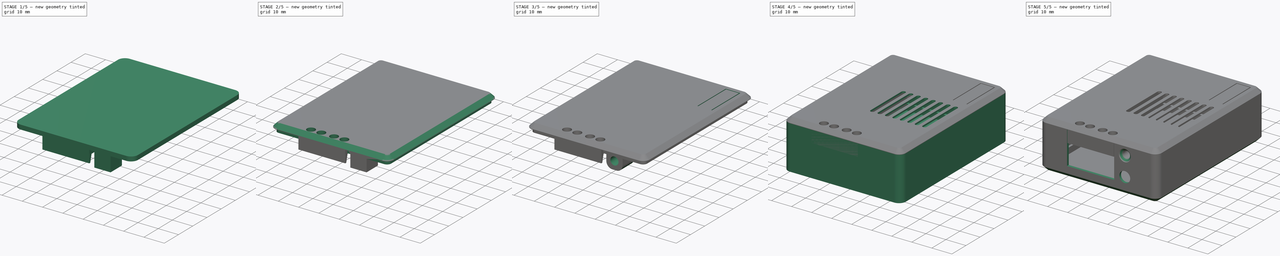
[diagram: build sequence overview — one tinted view per stage of 5, left to right]
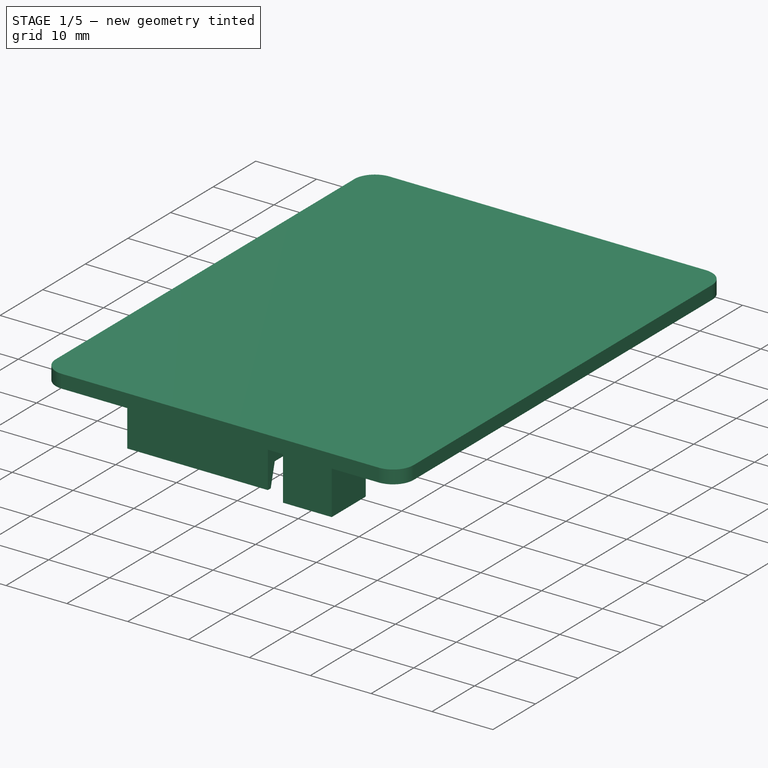
[diagram: stage 1 of 5 — iso view after this stage's code; geometry added in this stage tinted green]
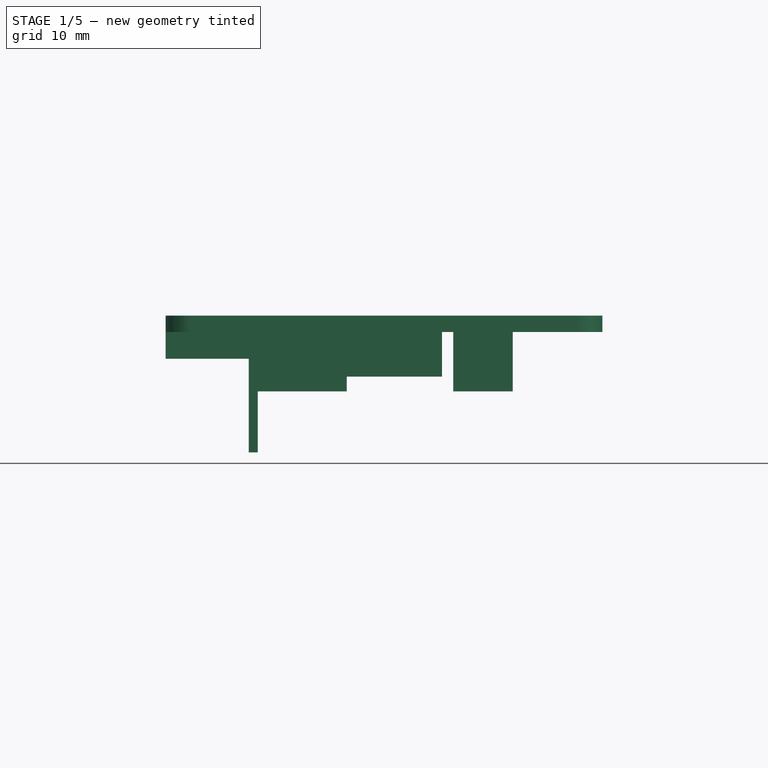
[diagram: stage 1 of 5 — front view after this stage's code; geometry added in this stage tinted green]
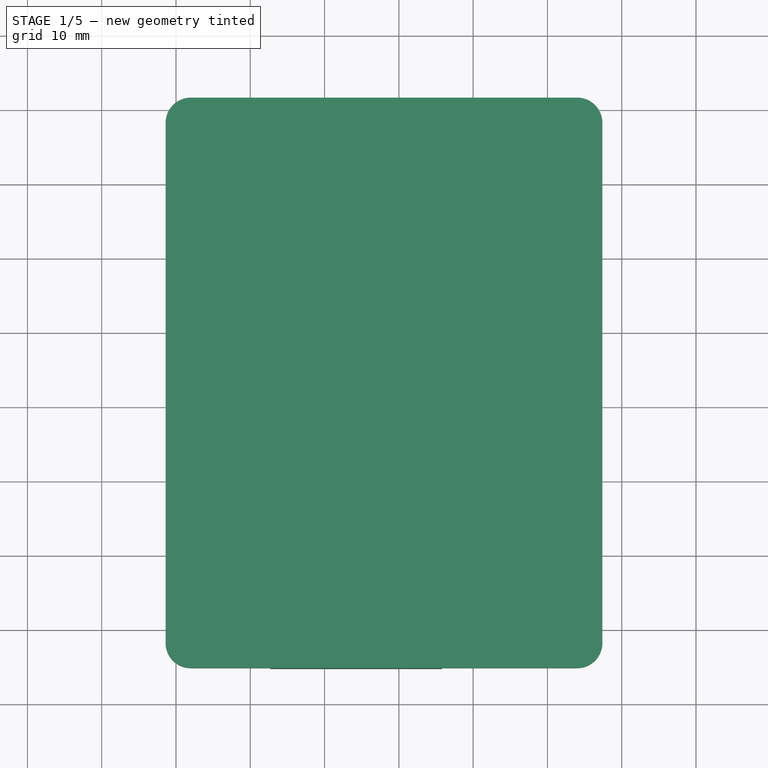
[diagram: stage 1 of 5 — top view after this stage's code; geometry added in this stage tinted green]
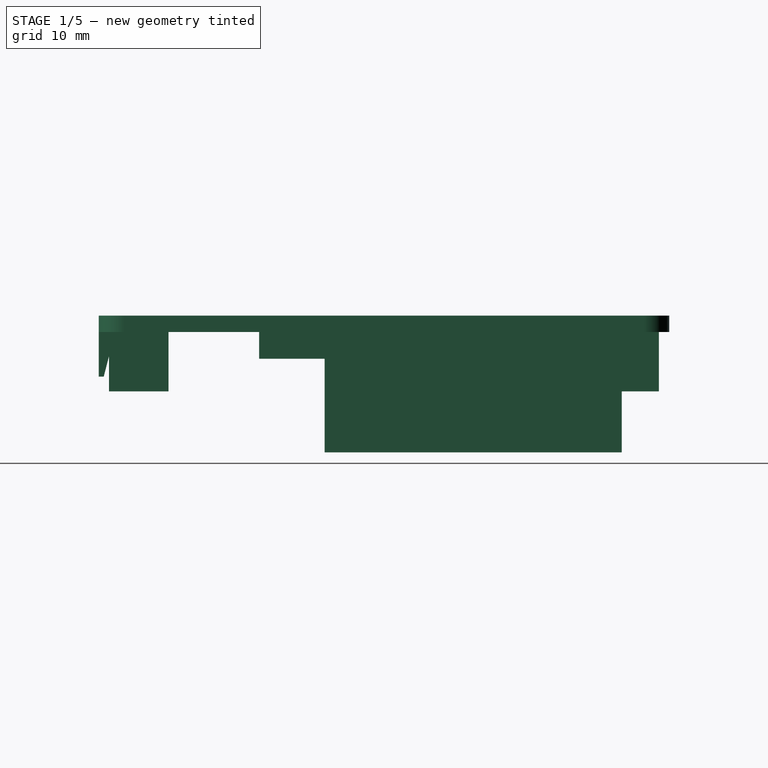
[diagram: stage 1 of 5 — right view after this stage's code; geometry added in this stage tinted green]
FCSTD DOCUMENT  (FreeCAD 2023.131R26244 +5365 (Git))
Label: CNC3040_Box
License: All rights reserved
LicenseURL: http://en.wikipedia.org/wiki/All_rights_reserved
objects: Sketcher::SketchObject×20, PartDesign::Pad×10, PartDesign::Pocket×10, Part::SubShapeBinder×5, PartDesign::Chamfer×5, Part::Feature×3, App::Part×3, PartDesign::Fillet×2, PartDesign::Body×2, App::Link×1, PartDesign::Plane×1, PartDesign::LinearPattern×1
note: 135 computed .brp shape members not serialized (recipe doc carries the construction recipe); baked Part::Feature solids carry a one-line shape summary decoded from their .brp

FEATURE [PartDesign::Body] Body  label="Bot"
  AutoGroupSolids = false
  ClaimAllChildren = false
  ExportMode = 0
  FixShape = 1
  Group = -> [DatumPlane,Import,Sketch,Pad,Sketch001,Pad001,Sketch002,Pad002,Sketch003,Pocket,Sketch004,Import001,Pocket001,Sketch005,Pocket002,Fillet,Chamfer,Chamfer001]
  InvalidShape = false
  Origin = -> Origin008
  Tip = -> Chamfer001
  TreeRank = 115
  ValidateShape = false
  _ExportChildren = -> [DatumPlane,Import,Pad,Pad001,Pad002,Pocket,Import001,Pocket001,Pocket002,Fillet,Chamfer,Chamfer001]
  _GroupVersion = 1
FEATURE [Part::SubShapeBinder] Import002  label="Import002(Chamfer001)"
  BindCopyOnChange = 0
  BindMode = 0
  ClaimChildren = false
  Context = -> Body001 [Import002.]
  EdgeTolerance = 1e-06
  FillStyle = 0
  FixShape = 1
  Fuse = false
  InvalidShape = false
  MakeFace = false
  MergeEdges = true
  OffsetFill = false
  OffsetIntersection = false
  OffsetJoinType = 0
  OffsetOpenResult = false
  Outline = false
  PartialLoad = false
  Relative = true
  SplitEdges = false
  Support = -> [Body[Chamfer001.]]
  TightBound = false
  TreeRank = 162
  ValidateShape = false
  _Version = 8
FEATURE [Sketcher::SketchObject] Sketch006
  ArcFitTolerance = 1e-06
  AttachmentSupport = -> [Import002]
  ExternalBSplineMaxDegree = 5
  ExternalBSplineTolerance = 0.0001
  ExternalGeometry = -> [Import002]
  FixShape = 1
  FullyConstrained = true
  InternalTolerance = 1e-06
  InvalidShape = false
  MakeInternals = false
  MapMode = 5
  Placement = pos=(0,2.1e-15,18) rot=(0,0,1;0rad)
  Support = -> [Import002]
  TreeRank = 163
  ValidateShape = false
  sketch-geometry (3):
    g0: LineSegment StartX=74 StartY=-18.6 StartZ=0 EndX=22 EndY=-18.6 EndZ=0
    g1: LineSegment StartX=74 StartY=-95.4 StartZ=0 EndX=22 EndY=-95.4 EndZ=0
    g2: LineSegment StartX=18.6 StartY=-92 StartZ=0 EndX=18.6 EndY=-22 EndZ=0
  constraints (6):
    c: Coincident(g0,g-3)
    c: Coincident(g0,g-7)
    c: Coincident(g1,g-5)
    c: Coincident(g1,g-6)
    c: Coincident(g2,g-6)
    c: Coincident(g2,g-8)
FEATURE [PartDesign::Pad] Pad003
  AddSubType = 0
  AlongSketchNormal = false
  AutoTaperInnerAngle = true
  CheckUpToFaceLimits = true
  ClaimChildren = false
  Direction = (0,1e-16,1)
  Fit = 0
  FitJoin = 0
  FixShape = 1
  InnerFit = 0
  InnerFitJoin = 0
  InvalidShape = false
  Length = 2.2
  Length2 = 100
  Linearize = true
  NewSolid = false
  Profile = -> Sketch006
  Refine = true
  Suppress = false
  TaperInnerAngle = 0
  TaperInnerAngleRev = 0
  TreeRank = 164
  Type = 0
  ValidateShape = false
  _ProfileBasedVersion = 1
FEATURE [Sketcher::SketchObject] Sketch007
  ArcFitTolerance = 1e-06
  AttachmentSupport = -> [Pad003]
  ExternalBSplineMaxDegree = 5
  ExternalBSplineTolerance = 0.0001
  ExternalGeometry = -> [Import002]
  FixShape = 1
  FullyConstrained = true
  InternalTolerance = 1e-06
  InvalidShape = false
  MakeInternals = false
  MapMode = 5
  Placement = pos=(0,1.7e-15,18) rot=(1,0,0;3.14159rad)
  Support = -> [Pad003]
  TreeRank = 165
  ValidateShape = false
  sketch-geometry (4):
    g0: LineSegment StartX=32.7 StartY=95.4 StartZ=0 EndX=55.8 EndY=95.4 EndZ=0
    g1: LineSegment StartX=55.8 StartY=95.4 StartZ=0 EndX=55.8 EndY=87.4 EndZ=0
    g2: LineSegment StartX=55.8 StartY=87.4 StartZ=0 EndX=32.7 EndY=87.4 EndZ=0
    g3: LineSegment StartX=32.7 StartY=87.4 StartZ=0 EndX=32.7 EndY=95.4 EndZ=0
  constraints (12):
    c: Coincident(g0,g1)
    c: Coincident(g1,g2)
    c: Coincident(g2,g3)
    c: Coincident(g3,g0)
    c: Horizontal(g0)
    c: Horizontal(g2)
    c: Vertical(g1)
    c: Vertical(g3)
    c: Horizontal(g-3,g0)
    c: DistanceX(g0,g-4) = 0.2
    c: DistanceX(g-3,g0) = 0.2
    c: Distance(g3) = 8
FEATURE [PartDesign::Pad] Pad004
  AddSubType = 0
  AlongSketchNormal = false
  AutoTaperInnerAngle = true
  BaseFeature = -> Pad003
  CheckUpToFaceLimits = true
  ClaimChildren = false
  Direction = (0,-1e-16,-1)
  Fit = 0
  FitJoin = 0
  FixShape = 1
  InnerFit = 0
  InnerFitJoin = 0
  InvalidShape = false
  Length = 6
  Length2 = 100
  Linearize = true
  NewSolid = false
  Profile = -> Sketch007
  Refine = true
  Suppress = false
  TaperInnerAngle = 0
  TaperInnerAngleRev = 0
  TreeRank = 166
  Type = 0
  ValidateShape = false
  _ProfileBasedVersion = 1
FEATURE [Sketcher::SketchObject] Sketch008
  ArcFitTolerance = 1e-06
  AttachmentSupport = -> [Pad004]
  ExternalBSplineMaxDegree = 5
  ExternalBSplineTolerance = 0.0001
  ExternalGeometry = -> [Pad004]
  FixShape = 1
  FullyConstrained = false
  InternalTolerance = 1e-06
  InvalidShape = false
  MakeInternals = false
  MapMode = 5
  Placement = pos=(55.8,0,0) rot=(0.57735,0.57735,0.57735;2.0944rad)
  Support = -> [Pad004]
  TreeRank = 167
  ValidateShape = false
  sketch-geometry (4):
    g0: LineSegment StartX=-94.7258 StartY=12 StartZ=0 EndX=-93.779 EndY=15.6597 EndZ=0
    g1: LineSegment StartX=-93.779 StartY=15.6597 StartZ=0 EndX=-87.4 EndY=15.6597 EndZ=0
    g2: LineSegment StartX=-87.4 StartY=15.6597 StartZ=0 EndX=-87.4 EndY=12 EndZ=0
    g3: LineSegment StartX=-87.4 StartY=12 StartZ=0 EndX=-94.7258 EndY=12 EndZ=0
  constraints (8):
    c: PointOnObject(g0,g-3)
    c: Coincident(g0,g1)
    c: PointOnObject(g1,g-4)
    c: Horizontal(g1)
    c: Coincident(g1,g2)
    c: Coincident(g2,g-4)
    c: Coincident(g2,g3)
    c: Coincident(g3,g0)
FEATURE [PartDesign::Pocket] Pocket003
  AddSubType = 1
  AutoTaperInnerAngle = true
  BaseFeature = -> Pad004
  CheckUpToFaceLimits = true
  ClaimChildren = false
  Fit = 0
  FitJoin = 0
  FixShape = 1
  InnerFit = 0
  InnerFitJoin = 0
  InvalidShape = false
  Length = 5
  Length2 = 100
  Linearize = true
  NewSolid = false
  Profile = -> Sketch008
  Refine = true
  Suppress = false
  TaperInnerAngle = 0
  TaperInnerAngleRev = 0
  TreeRank = 168
  Type = 1
  ValidateShape = false
  _ProfileBasedVersion = 1
  _Version = 1
FEATURE [Sketcher::SketchObject] Sketch009
  ArcFitTolerance = 1e-06
  AttachmentSupport = -> [Pocket003]
  ExternalBSplineMaxDegree = 5
  ExternalBSplineTolerance = 0.0001
  ExternalGeometry = -> [Import002,Pocket003]
  FixShape = 1
  FullyConstrained = true
  InternalTolerance = 1e-06
  InvalidShape = false
  MakeInternals = false
  MapMode = 5
  Placement = pos=(0,1.7e-15,18) rot=(1,0,0;3.14159rad)
  Support = -> [Pocket003]
  TreeRank = 169
  ValidateShape = false
  sketch-geometry (5):
    g0: LineSegment StartX=18.6 StartY=22 StartZ=0 EndX=18.6 EndY=73.805 EndZ=0
    g1: LineSegment StartX=18.6 StartY=73.805 StartZ=0 EndX=36.6 EndY=73.805 EndZ=0
    g2: LineSegment StartX=36.6 StartY=73.805 StartZ=0 EndX=36.6 EndY=20.205 EndZ=0
    g3: LineSegment StartX=19.1124 StartY=20.205 StartZ=0 EndX=36.6 EndY=20.205 EndZ=0
    g4: ArcOfCircle CenterX=22 CenterY=22 CenterZ=0 NormalX=0 NormalY=0 NormalZ=1 AngleXU=0 Radius=3.4 StartAngle=3.14159 EndAngle=3.69777
  constraints (14):
    c: Vertical(g0)
    c: Coincident(g0,g1)
    c: Coincident(g1,g2)
    c: Vertical(g2)
    c: Horizontal(g3)
    c: Coincident(g4,g-5)
    c: Coincident(g4,g-5)
    c: Coincident(g4,g3)
    c: Coincident(g0,g4)
    c: Coincident(g2,g3)
    c: Horizontal(g1)
    c: DistanceY(g0,g-3) = 0.2
    c: DistanceY(g-5,g3) = 0.2
    c: Distance(g1) = 18
FEATURE [PartDesign::Pad] Pad005
  AddSubType = 0
  AlongSketchNormal = false
  AutoTaperInnerAngle = true
  BaseFeature = -> Pocket003
  CheckUpToFaceLimits = true
  ClaimChildren = false
  Direction = (0,-1e-16,-1)
  Fit = 0
  FitJoin = 0
  FixShape = 1
  InnerFit = 0
  InnerFitJoin = 0
  InvalidShape = false
  Length = 3.6
  Length2 = 100
  Linearize = true
  NewSolid = false
  Profile = -> Sketch009
  Refine = true
  Suppress = false
  TaperInnerAngle = 0
  TaperInnerAngleRev = 0
  TreeRank = 170
  Type = 0
  ValidateShape = false
  _ProfileBasedVersion = 1
FEATURE [Sketcher::SketchObject] Sketch010
  ArcFitTolerance = 1e-06
  AttachmentSupport = -> [Pad005]
  ExternalBSplineMaxDegree = 5
  ExternalBSplineTolerance = 0.0001
  ExternalGeometry = -> [Import002,Pad005]
  FixShape = 1
  FullyConstrained = false
  InternalTolerance = 1e-06
  InvalidShape = false
  MakeInternals = false
  MapMode = 5
  Placement = pos=(0,1.7e-15,18) rot=(1,0,0;3.14159rad)
  Support = -> [Pad005]
  TreeRank = 173
  ValidateShape = false
  sketch-geometry (12):
    g0: LineSegment StartX=42.9877 StartY=19.99 StartZ=0 EndX=29.8 EndY=19.99 EndZ=0
    g1: LineSegment StartX=29.8 StartY=19.99 StartZ=0 EndX=29.8 EndY=64.99 EndZ=0
    g2: LineSegment StartX=29.8 StartY=64.99 StartZ=0 EndX=36.6 EndY=64.99 EndZ=0
    g3: LineSegment StartX=36.6 StartY=64.99 StartZ=0 EndX=36.6 EndY=27.99 EndZ=0
    g4: LineSegment StartX=36.6 StartY=27.99 StartZ=0 EndX=42.9877 EndY=27.99 EndZ=0
    g5: LineSegment StartX=42.9877 StartY=27.99 StartZ=0 EndX=42.9877 EndY=19.99 EndZ=0
    g6: LineSegment StartX=65.3239 StartY=86.01 StartZ=0 EndX=57.3239 EndY=86.01 EndZ=0
    g7: LineSegment StartX=57.3239 StartY=86.01 StartZ=0 EndX=57.3239 EndY=94.01 EndZ=0
    g8: LineSegment StartX=57.3239 StartY=94.01 StartZ=0 EndX=65.3239 EndY=94.01 EndZ=0
    g9: LineSegment StartX=65.3239 StartY=94.01 StartZ=0 EndX=65.3239 EndY=86.01 EndZ=0
    g10: LineSegment [constr] StartX=61.3239 StartY=83.6972 StartZ=0 EndX=61.3239 EndY=98.6165 EndZ=0
    g11: LineSegment [constr] StartX=38.9877 StartY=14.5563 StartZ=0 EndX=38.9877 EndY=33.0158 EndZ=0
  constraints (31):
    c: Horizontal(g0)
    c: Coincident(g0,g1)
    c: Vertical(g1)
    c: Coincident(g1,g2)
    c: Coincident(g2,g3)
    c: Vertical(g3)
    c: Coincident(g3,g4)
    c: Horizontal(g4)
    c: Coincident(g4,g5)
    c: Coincident(g5,g0)
    c: Vertical(g5)
    c: Coincident(g6,g7)
    c: Coincident(g7,g8)
    c: Coincident(g8,g9)
    c: Coincident(g9,g6)
    c: Horizontal(g8)
    c: Vertical(g7)
    c: Vertical(g9)
    c: Symmetric(g-4,g-4,g10)
    c: Symmetric(g6,g6,g10)
    c: Distance(g6) = 8
    c: Distance(g9) = 8
    c: DistanceY(g7,g-4) = 0.2
    c: Symmetric(g-3,g-3,g11)
    c: DistanceX(g11,g0) = 4
    c: Distance(g5) = 8
    c: DistanceY(g-3,g0) = 0.2
    c: PointOnObject(g3,g-5)
    c: DistanceX(g-6,g0) = 11.2
    c: Horizontal(g2)
    c: Distance(g1) = 45
FEATURE [PartDesign::Pad] Pad006
  AddSubType = 0
  AlongSketchNormal = false
  AutoTaperInnerAngle = true
  BaseFeature = -> Pad005
  CheckUpToFaceLimits = true
  ClaimChildren = false
  Direction = (0,-1e-16,-1)
  Fit = 0
  FitJoin = 0
  FixShape = 1
  InnerFit = 0
  InnerFitJoin = 0
  InvalidShape = false
  Length = 8
  Length2 = 100
  Linearize = true
  NewSolid = false
  Profile = -> Sketch010
  Refine = true
  Suppress = false
  TaperInnerAngle = 0
  TaperInnerAngleRev = 0
  TreeRank = 174
  Type = 0
  ValidateShape = false
  _ProfileBasedVersion = 1
FEATURE [Sketcher::SketchObject] Sketch011
  ArcFitTolerance = 1e-06
  AttachmentSupport = -> [Pad006]
  ExternalBSplineMaxDegree = 5
  ExternalBSplineTolerance = 0.0001
  ExternalGeometry = -> [Pad006]
  FixShape = 1
  FullyConstrained = true
  InternalTolerance = 1e-06
  InvalidShape = false
  MakeInternals = false
  MapMode = 5
  Placement = pos=(2e-16,9e-16,10) rot=(1,0,0;3.14159rad)
  Support = -> [Pad006]
  TreeRank = 175
  ValidateShape = false
  sketch-geometry (4):
    g0: LineSegment StartX=29.8 StartY=64.99 StartZ=0 EndX=31 EndY=64.99 EndZ=0
    g1: LineSegment StartX=31 StartY=64.99 StartZ=0 EndX=31 EndY=24.99 EndZ=0
    g2: LineSegment StartX=31 StartY=24.99 StartZ=0 EndX=29.8 EndY=24.99 EndZ=0
    g3: LineSegment StartX=29.8 StartY=24.99 StartZ=0 EndX=29.8 EndY=64.99 EndZ=0
  constraints (11):
    c: Coincident(g0,g1)
    c: Coincident(g1,g2)
    c: Coincident(g2,g3)
    c: Coincident(g3,g0)
    c: Horizontal(g0)
    c: Horizontal(g2)
    c: Vertical(g1)
    c: Vertical(g3)
    c: Coincident(g0,g-3)
    c: Distance(g0) = 1.2
    c: Distance(g3) = 40
FEATURE [PartDesign::Pad] Pad007
  AddSubType = 0
  AlongSketchNormal = false
  AutoTaperInnerAngle = true
  BaseFeature = -> Pad006
  CheckUpToFaceLimits = true
  ClaimChildren = false
  Direction = (0,-1e-16,-1)
  Fit = 0
  FitJoin = 0
  FixShape = 1
  InnerFit = 0
  InnerFitJoin = 0
  InvalidShape = false
  Length = 8.2
  Length2 = 100
  Linearize = true
  NewSolid = false
  Profile = -> Sketch011
  Refine = true
  Suppress = false
  TaperInnerAngle = 0
  TaperInnerAngleRev = 0
  TreeRank = 176
  Type = 0
  ValidateShape = false
  _ProfileBasedVersion = 1
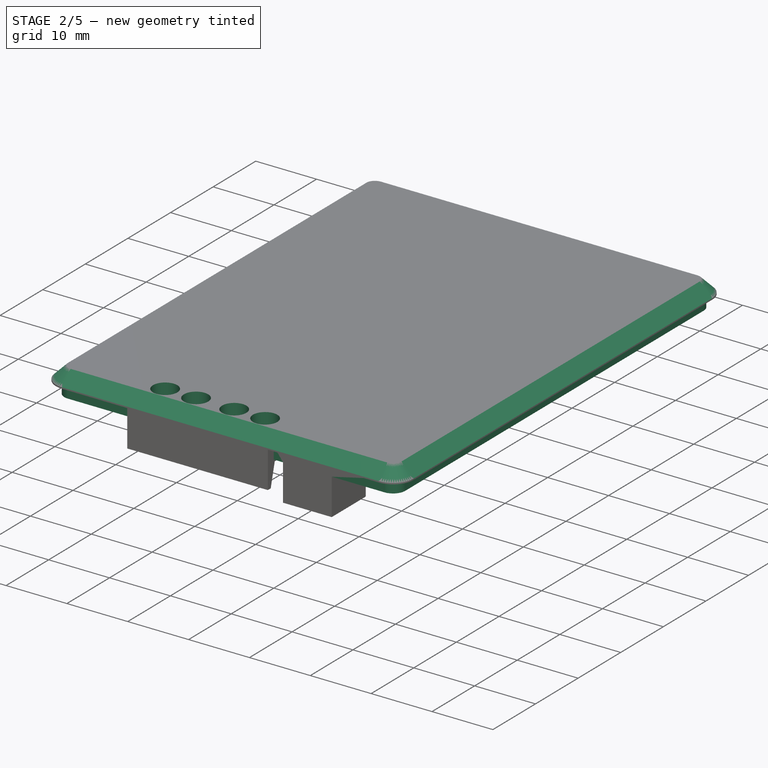
[diagram: stage 2 of 5 — iso view after this stage's code; geometry added in this stage tinted green]
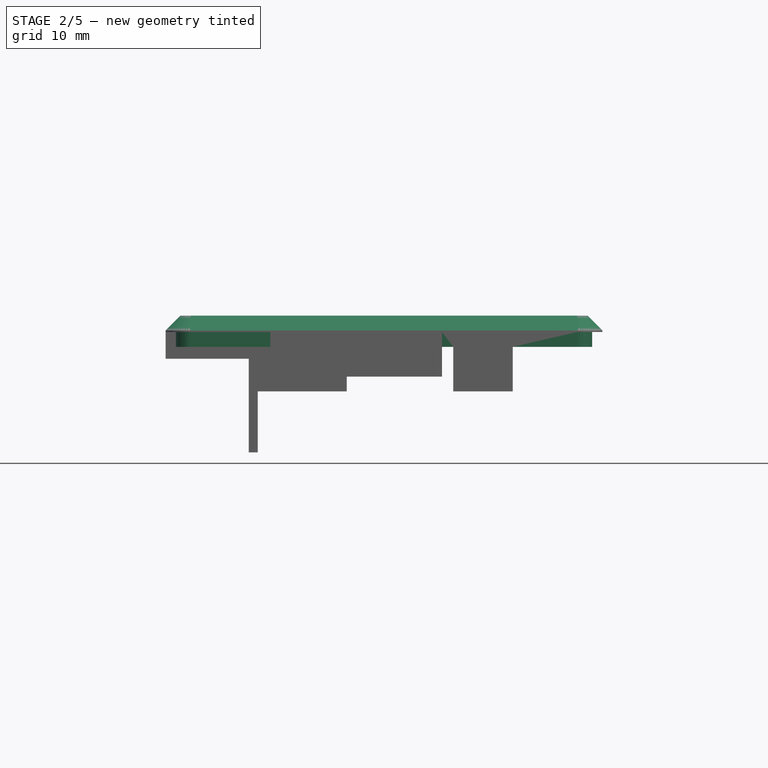
[diagram: stage 2 of 5 — front view after this stage's code; geometry added in this stage tinted green]
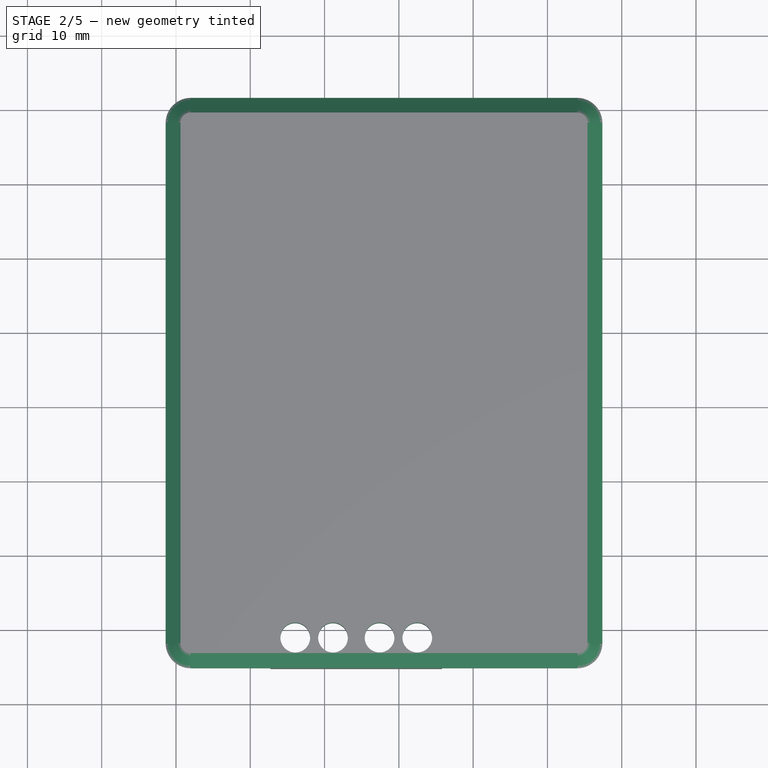
[diagram: stage 2 of 5 — top view after this stage's code; geometry added in this stage tinted green]
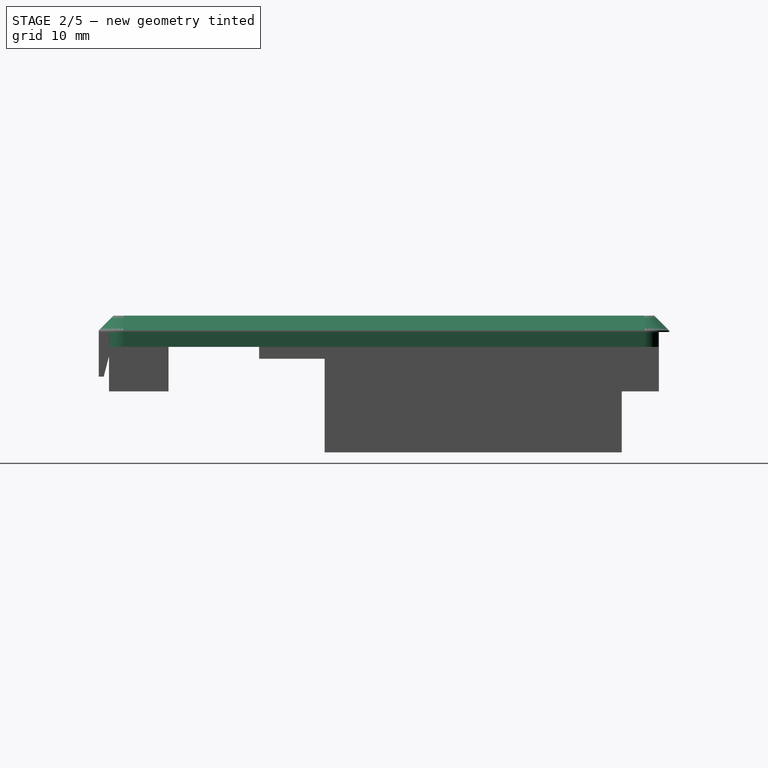
[diagram: stage 2 of 5 — right view after this stage's code; geometry added in this stage tinted green]
FEATURE [Sketcher::SketchObject] Sketch012
  ArcFitTolerance = 1e-06
  AttachmentSupport = -> [Pad007]
  ExternalBSplineMaxDegree = 5
  ExternalBSplineTolerance = 0.0001
  ExternalGeometry = -> [Import002,Pad007]
  FixShape = 1
  FullyConstrained = true
  InternalTolerance = 1e-06
  InvalidShape = false
  MakeInternals = false
  MapMode = 5
  Placement = pos=(0,1.7e-15,18) rot=(1,0,0;3.14159rad)
  Support = -> [Pad007]
  TreeRank = 177
  ValidateShape = false
  sketch-geometry (17):
    g0: ArcOfCircle CenterX=74 CenterY=22 CenterZ=0 NormalX=0 NormalY=0 NormalZ=1 AngleXU=0 Radius=2.01 StartAngle=4.71239 EndAngle=6.28319
    g1: ArcOfCircle CenterX=74 CenterY=92 CenterZ=0 NormalX=0 NormalY=0 NormalZ=1 AngleXU=0 Radius=2.01 StartAngle=-9e-16 EndAngle=1.5708
    g2: ArcOfCircle CenterX=22 CenterY=92 CenterZ=0 NormalX=0 NormalY=0 NormalZ=1 AngleXU=0 Radius=2.01 StartAngle=1.5708 EndAngle=3.14159
    g3: LineSegment StartX=66.2 StartY=19.99 StartZ=0 EndX=74 EndY=19.99 EndZ=0
    g4: LineSegment StartX=42.9877 StartY=19.99 StartZ=0 EndX=56.2 EndY=19.99 EndZ=0
    g5: LineSegment StartX=76.01 StartY=22 StartZ=0 EndX=76.01 EndY=92 EndZ=0
    g6: LineSegment StartX=74 StartY=94.01 StartZ=0 EndX=22 EndY=94.01 EndZ=0
    g7: LineSegment StartX=19.99 StartY=92 StartZ=0 EndX=19.99 EndY=73.805 EndZ=0
    g8: LineSegment StartX=21.59 StartY=73.805 StartZ=0 EndX=21.59 EndY=92.81 EndZ=0
    g9: LineSegment StartX=21.59 StartY=92.81 StartZ=0 EndX=74.41 EndY=92.81 EndZ=0
    g10: LineSegment StartX=74.41 StartY=92.81 StartZ=0 EndX=74.41 EndY=21.59 EndZ=0
    g11: LineSegment StartX=74.41 StartY=21.59 StartZ=0 EndX=66.2 EndY=21.59 EndZ=0
    g12: LineSegment StartX=66.2 StartY=21.59 StartZ=0 EndX=66.2 EndY=19.99 EndZ=0
    g13: LineSegment StartX=56.2 StartY=19.99 StartZ=0 EndX=56.2 EndY=21.59 EndZ=0
    g14: LineSegment StartX=56.2 StartY=21.59 StartZ=0 EndX=42.9877 EndY=21.59 EndZ=0
    g15: LineSegment StartX=42.9877 StartY=21.59 StartZ=0 EndX=42.9877 EndY=19.99 EndZ=0
    g16: LineSegment StartX=19.99 StartY=73.805 StartZ=0 EndX=21.59 EndY=73.805 EndZ=0
  constraints (50):
    c: Coincident(g0,g-5)
    c: Coincident(g1,g-6)
    c: Coincident(g2,g-7)
    c: Horizontal(g-7,g2)
    c: Horizontal(g1,g-6)
    c: Horizontal(g0,g-5)
    c: Vertical(g-5,g0)
    c: Vertical(g1,g-6)
    c: Vertical(g2,g-7)
    c: Coincident(g3,g0)
    c: Horizontal(g3)
    c: Vertical(g3,g-4)
    c: Coincident(g4,g-8)
    c: Horizontal(g4)
    c: Vertical(g-3,g4)
    c: Horizontal(g4,g3)
    c: Coincident(g5,g0)
    c: Coincident(g5,g1)
    c: Vertical(g5)
    c: Coincident(g6,g1)
    c: Coincident(g6,g2)
    c: Horizontal(g6)
    c: Coincident(g7,g2)
    c: PointOnObject(g7,g-9)
    c: Vertical(g7)
    c: PointOnObject(g8,g-9)
    c: Vertical(g8)
    c: Coincident(g8,g9)
    c: Horizontal(g9)
    c: Coincident(g9,g10)
    c: Vertical(g10)
    c: Coincident(g10,g11)
    c: Horizontal(g11)
    c: Coincident(g11,g12)
    c: Coincident(g12,g3)
    c: Vertical(g12)
    c: Coincident(g4,g13)
    c: Vertical(g13)
    c: Coincident(g13,g14)
    c: PointOnObject(g14,g-8)
    c: Horizontal(g14)
    c: Coincident(g14,g15)
    c: Coincident(g15,g4)
    c: Coincident(g7,g16)
    c: Coincident(g16,g8)
    c: Equal(g16,g13)
    c: Equal(g13,g12)
    c: Distance(g12) = 1.6
    c: DistanceX(g10,g0) = 1.6
    c: DistanceY(g9,g1) = 1.2
FEATURE [PartDesign::Pad] Pad008
  AddSubType = 0
  AlongSketchNormal = false
  AutoTaperInnerAngle = true
  BaseFeature = -> Pad007
  CheckUpToFaceLimits = true
  ClaimChildren = false
  Direction = (0,-1e-16,-1)
  Fit = 0
  FitJoin = 0
  FixShape = 1
  InnerFit = 0
  InnerFitJoin = 0
  InvalidShape = false
  Length = 2
  Length2 = 100
  Linearize = true
  NewSolid = false
  Profile = -> Sketch012
  Refine = true
  Suppress = false
  TaperInnerAngle = 0
  TaperInnerAngleRev = 0
  TreeRank = 178
  Type = 0
  ValidateShape = false
  _ProfileBasedVersion = 1
FEATURE [Sketcher::SketchObject] Sketch013
  ArcFitTolerance = 1e-06
  AttachmentSupport = -> [Pad008]
  ExternalBSplineMaxDegree = 5
  ExternalBSplineTolerance = 0.0001
  ExternalGeometry = -> [Pad008]
  FixShape = 1
  FullyConstrained = true
  InternalTolerance = 1e-06
  InvalidShape = false
  MakeInternals = false
  MapMode = 5
  Placement = pos=(0,1.7e-15,18) rot=(1,0,0;3.14159rad)
  Support = -> [Pad008]
  TreeRank = 179
  ValidateShape = false
  sketch-geometry (2):
    g0: LineSegment StartX=55.8 StartY=87.4 StartZ=0 EndX=57.3239 EndY=86.01 EndZ=0
    g1: LineSegment StartX=56.2 StartY=21.59 StartZ=0 EndX=66.2 EndY=21.59 EndZ=0
  constraints (4):
    c: Coincident(g0,g-7)
    c: Coincident(g0,g-6)
    c: Coincident(g1,g-15)
    c: Coincident(g1,g-16)
FEATURE [PartDesign::Pocket] Pocket004
  AddSubType = 1
  AutoTaperInnerAngle = true
  BaseFeature = -> Pad008
  CheckUpToFaceLimits = true
  ClaimChildren = false
  Fit = 0
  FitJoin = 0
  FixShape = 1
  InnerFit = 0
  InnerFitJoin = 0
  InvalidShape = false
  Length = 1.4
  Length2 = 100
  Linearize = true
  NewSolid = false
  Profile = -> Sketch013
  Refine = true
  Suppress = false
  TaperInnerAngle = 0
  TaperInnerAngleRev = 0
  TreeRank = 180
  Type = 0
  ValidateShape = false
  _ProfileBasedVersion = 1
  _Version = 1
FEATURE [PartDesign::Chamfer] Chamfer002
  AddSubType = 0
  Angle = 45
  Base = -> Pocket004 [Edge145,Edge146,Edge147,Edge148,Edge149,Edge150,Edge151,Edge152,Edge153,Edge141,Edge140,Edge142,Edge143,Edge144]
  BaseFeature = -> Pocket004
  ChamferType = 0
  FixShape = 1
  FlipDirection = false
  InvalidShape = false
  NewSolid = false
  Refine = true
  Size = 1
  Size2 = 1
  SupportTransform = false
  Suppress = false
  TreeRank = 181
  ValidateShape = false
FEATURE [PartDesign::Chamfer] Chamfer003
  AddSubType = 0
  Angle = 45
  Base = -> Chamfer002 [Edge149]
  BaseFeature = -> Chamfer002
  ChamferType = 0
  FixShape = 1
  FlipDirection = false
  InvalidShape = false
  NewSolid = false
  Refine = true
  Size = 2
  Size2 = 1
  SupportTransform = false
  Suppress = false
  TreeRank = 182
  ValidateShape = false
FEATURE [Part::SubShapeBinder] Import003  label="Import003(SOLID)"
  BindCopyOnChange = 0
  BindMode = 0
  ClaimChildren = false
  Context = -> Body001 [Import003.]
  EdgeTolerance = 1e-06
  FillStyle = 0
  FixShape = 1
  Fuse = false
  InvalidShape = false
  MakeFace = false
  MergeEdges = true
  OffsetFill = false
  OffsetIntersection = false
  OffsetJoinType = 0
  OffsetOpenResult = false
  Outline = false
  PartialLoad = false
  Relative = true
  SplitEdges = false
  Support = -> [Part007[Part.Solid.]]
  TightBound = false
  TreeRank = 184
  ValidateShape = false
  _Version = 8
FEATURE [Part::SubShapeBinder] Import004  label="Import004(SOLID)"
  BindCopyOnChange = 0
  BindMode = 0
  ClaimChildren = false
  Context = -> Body001 [Import004.]
  EdgeTolerance = 1e-06
  FillStyle = 0
  FixShape = 1
  Fuse = false
  InvalidShape = false
  MakeFace = false
  MergeEdges = true
  OffsetFill = false
  OffsetIntersection = false
  OffsetJoinType = 0
  OffsetOpenResult = false
  Outline = false
  PartialLoad = false
  Relative = true
  SplitEdges = false
  Support = -> [Part007[Link001.Solid.]]
  TightBound = false
  TreeRank = 185
  ValidateShape = false
  _Version = 8
FEATURE [Sketcher::SketchObject] Sketch014
  ArcFitTolerance = 1e-06
  AttachmentSupport = -> [Chamfer003]
  ExternalBSplineMaxDegree = 5
  ExternalBSplineTolerance = 0.0001
  ExternalGeometry = -> [Import003,Import004]
  FixShape = 1
  FullyConstrained = true
  InternalTolerance = 1e-06
  InvalidShape = false
  MakeInternals = false
  MapMode = 5
  Placement = pos=(0,0,15.6597) rot=(1,0,0;3.14159rad)
  Support = -> [Chamfer003]
  TreeRank = 183
  ValidateShape = false
FEATURE [PartDesign::Pocket] Pocket005
  AddSubType = 1
  AutoTaperInnerAngle = true
  BaseFeature = -> Chamfer003
  CheckUpToFaceLimits = true
  ClaimChildren = false
  Fit = 0
  FitJoin = 0
  FixShape = 1
  InnerFit = 0
  InnerFitJoin = 0
  InvalidShape = false
  Length = 11
  Length2 = 100
  Linearize = true
  NewSolid = false
  Profile = -> Sketch014
  Refine = true
  Suppress = false
  TaperInnerAngle = 0
  TaperInnerAngleRev = 0
  TreeRank = 186
  Type = 0
  ValidateShape = false
  _ProfileBasedVersion = 1
  _Version = 1
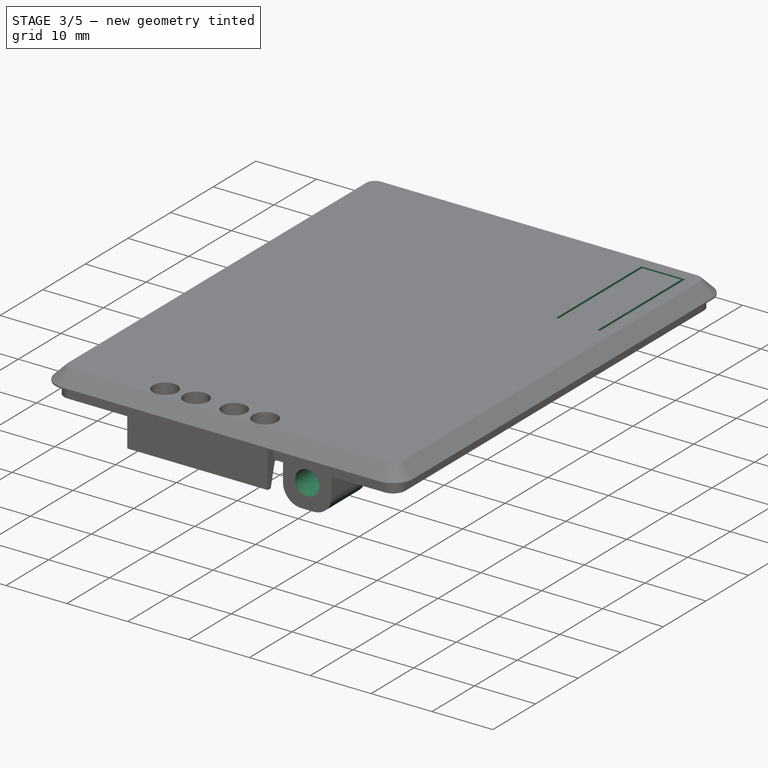
[diagram: stage 3 of 5 — iso view after this stage's code; geometry added in this stage tinted green]
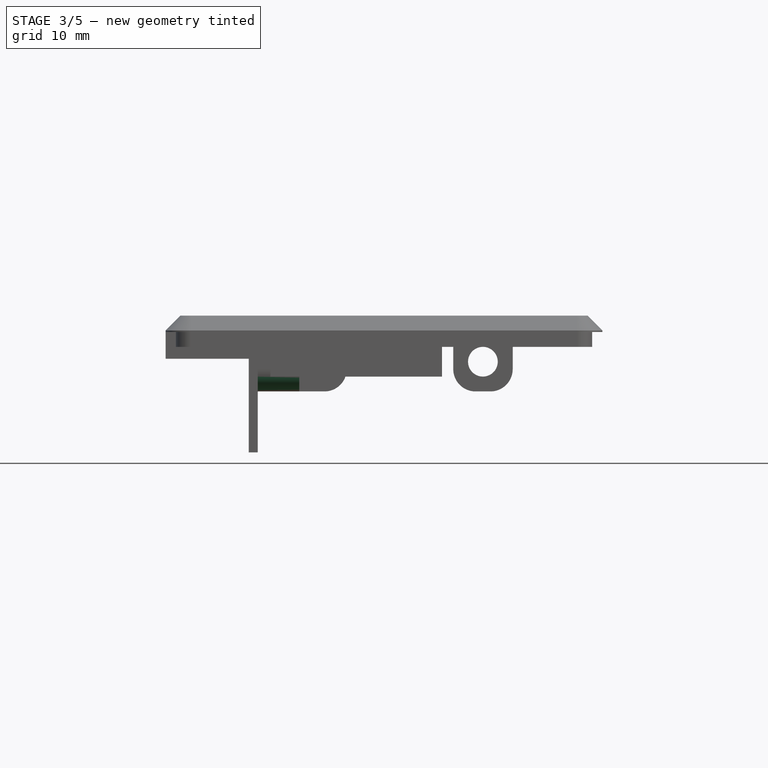
[diagram: stage 3 of 5 — front view after this stage's code; geometry added in this stage tinted green]
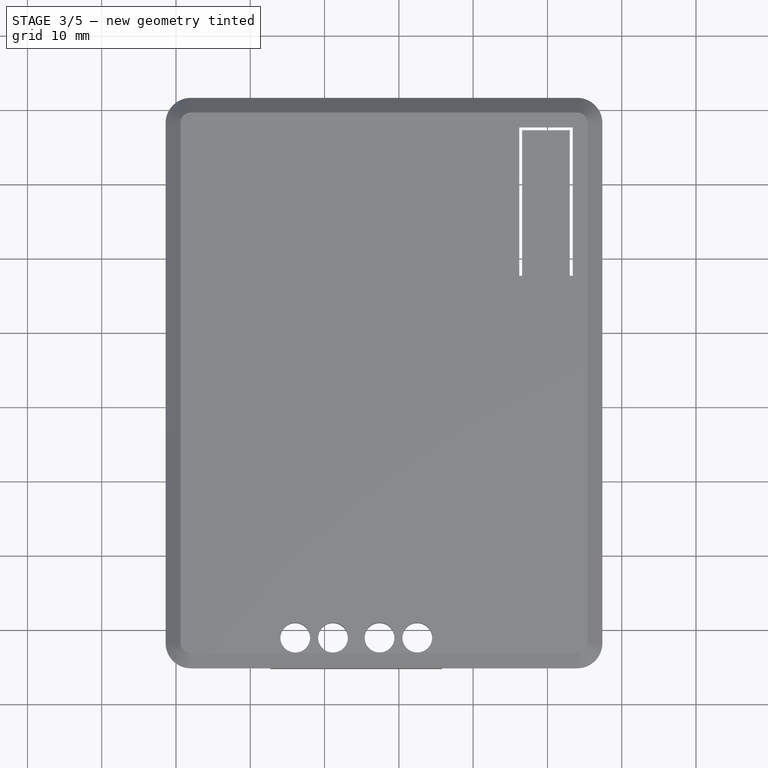
[diagram: stage 3 of 5 — top view after this stage's code; geometry added in this stage tinted green]
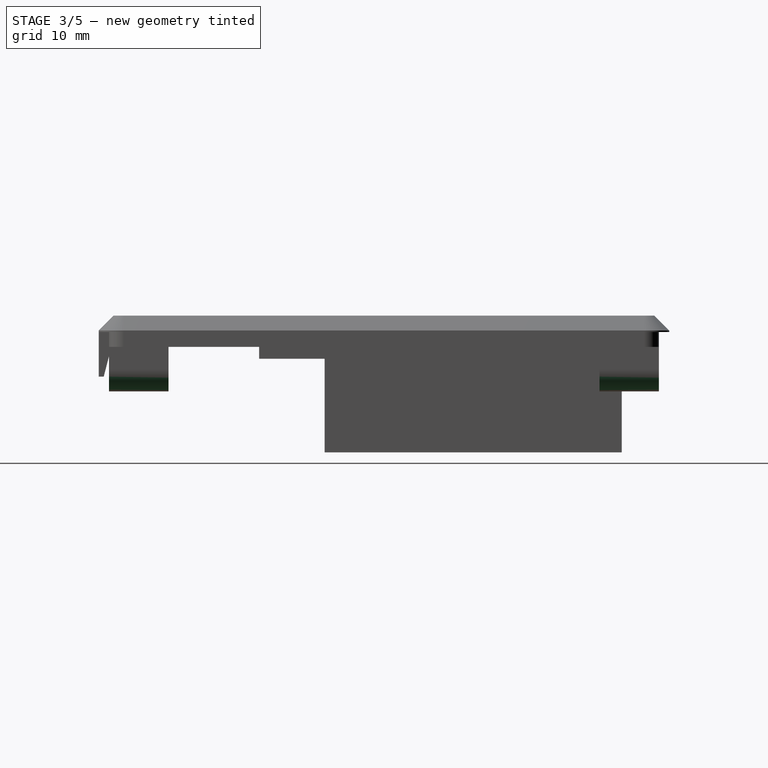
[diagram: stage 3 of 5 — right view after this stage's code; geometry added in this stage tinted green]
FEATURE [Sketcher::SketchObject] Sketch015
  ArcFitTolerance = 1e-06
  AttachmentSupport = -> [Pocket005]
  ExternalBSplineMaxDegree = 5
  ExternalBSplineTolerance = 0.0001
  ExternalGeometry = -> [Import002]
  FixShape = 1
  FullyConstrained = true
  InternalTolerance = 1e-06
  InvalidShape = false
  MakeInternals = false
  MapMode = 5
  Placement = pos=(0,-94.01,0) rot=(1,0,0;1.5708rad)
  Support = -> [Pocket005]
  TreeRank = 187
  ValidateShape = false
  sketch-geometry (1):
    g0: Circle CenterX=61.3116 CenterY=14 CenterZ=0 NormalX=0 NormalY=0 NormalZ=1 AngleXU=0 Radius=2
  constraints (2):
    c: Coincident(g0,g-3)
    c: Diameter(g0) = 4
FEATURE [PartDesign::Pocket] Pocket006
  AddSubType = 1
  AutoTaperInnerAngle = true
  BaseFeature = -> Pocket005
  CheckUpToFaceLimits = true
  ClaimChildren = false
  Fit = 0
  FitJoin = 0
  FixShape = 1
  InnerFit = 0
  InnerFitJoin = 0
  InvalidShape = false
  Length = 10
  Length2 = 100
  Linearize = true
  NewSolid = false
  Profile = -> Sketch015
  Refine = true
  Suppress = false
  TaperInnerAngle = 0
  TaperInnerAngleRev = 0
  TreeRank = 188
  Type = 0
  ValidateShape = false
  _ProfileBasedVersion = 1
  _Version = 1
FEATURE [Sketcher::SketchObject] Sketch016
  ArcFitTolerance = 1e-06
  AttachmentSupport = -> [Pocket006]
  ExternalBSplineMaxDegree = 5
  ExternalBSplineTolerance = 0.0001
  ExternalGeometry = -> [Import002]
  FixShape = 1
  FullyConstrained = true
  InternalTolerance = 1e-06
  InvalidShape = false
  MakeInternals = false
  MapMode = 5
  Placement = pos=(0,-19.99,0) rot=(0,0.707107,0.707107;3.14159rad)
  Support = -> [Pocket006]
  TreeRank = 189
  ValidateShape = false
  sketch-geometry (1):
    g0: Circle CenterX=-39 CenterY=14 CenterZ=0 NormalX=0 NormalY=0 NormalZ=1 AngleXU=0 Radius=2
  constraints (2):
    c: Coincident(g0,g-3)
    c: Diameter(g0) = 4
FEATURE [PartDesign::Pocket] Pocket007
  AddSubType = 1
  AutoTaperInnerAngle = true
  BaseFeature = -> Pocket006
  CheckUpToFaceLimits = true
  ClaimChildren = false
  Fit = 0
  FitJoin = 0
  FixShape = 1
  InnerFit = 0
  InnerFitJoin = 0
  InvalidShape = false
  Length = 10
  Length2 = 100
  Linearize = true
  NewSolid = false
  Profile = -> Sketch016
  Refine = true
  Suppress = false
  TaperInnerAngle = 0
  TaperInnerAngleRev = 0
  TreeRank = 190
  Type = 0
  ValidateShape = false
  _ProfileBasedVersion = 1
  _Version = 1
FEATURE [PartDesign::Fillet] Fillet001
  AddSubType = 0
  Base = -> Pocket007 [Edge171,Edge169,Edge184,Edge187]
  BaseFeature = -> Pocket007
  FixShape = 1
  InvalidShape = false
  NewSolid = false
  Radius = 3
  Refine = true
  SupportTransform = false
  Suppress = false
  TreeRank = 191
  ValidateShape = false
FEATURE [Sketcher::SketchObject] Sketch017
  ArcFitTolerance = 1e-06
  AttachmentSupport = -> [Fillet001]
  ExternalBSplineMaxDegree = 5
  ExternalBSplineTolerance = 0.0001
  ExternalGeometry = -> [Fillet001]
  FixShape = 1
  FullyConstrained = true
  InternalTolerance = 1e-06
  InvalidShape = false
  MakeInternals = false
  MapMode = 5
  Placement = pos=(-4e-16,1.7e-15,19.4) rot=(1,0,0;3.14159rad)
  Support = -> [Fillet001]
  TreeRank = 192
  ValidateShape = false
  sketch-geometry (8):
    g0: LineSegment StartX=66.2 StartY=42.59 StartZ=0 EndX=66.2 EndY=22.59 EndZ=0
    g1: LineSegment StartX=66.2 StartY=22.59 StartZ=0 EndX=73.41 EndY=22.59 EndZ=0
    g2: LineSegment StartX=73.41 StartY=22.59 StartZ=0 EndX=73.41 EndY=42.59 EndZ=0
    g3: LineSegment StartX=73.41 StartY=42.59 StartZ=0 EndX=73.01 EndY=42.59 EndZ=0
    g4: LineSegment StartX=73.01 StartY=42.59 StartZ=0 EndX=73.01 EndY=22.99 EndZ=0
    g5: LineSegment StartX=73.01 StartY=22.99 StartZ=0 EndX=66.6 EndY=22.99 EndZ=0
    g6: LineSegment StartX=66.6 StartY=22.99 StartZ=0 EndX=66.6 EndY=42.59 EndZ=0
    g7: LineSegment StartX=66.6 StartY=42.59 StartZ=0 EndX=66.2 EndY=42.59 EndZ=0
  constraints (23):
    c: Vertical(g0)
    c: Coincident(g0,g1)
    c: Horizontal(g1)
    c: Coincident(g1,g2)
    c: Vertical(g2)
    c: Coincident(g2,g3)
    c: Horizontal(g3)
    c: Coincident(g3,g4)
    c: Vertical(g4)
    c: Coincident(g4,g5)
    c: Coincident(g5,g6)
    c: Vertical(g6)
    c: Coincident(g6,g7)
    c: Coincident(g7,g0)
    c: Horizontal(g7)
    c: Horizontal(g5)
    c: Coincident(g1,g-4)
    c: Equal(g3,g7)
    c: Distance(g7) = 0.4
    c: Vertical(g0,g-3)
    c: DistanceY(g0,g5) = 0.4
    c: Horizontal(g3,g6)
    c: Distance(g0) = 20
FEATURE [PartDesign::Pocket] Pocket008
  AddSubType = 1
  AutoTaperInnerAngle = true
  BaseFeature = -> Fillet001
  CheckUpToFaceLimits = true
  ClaimChildren = false
  Fit = 0
  FitJoin = 0
  FixShape = 1
  InnerFit = 0
  InnerFitJoin = 0
  InvalidShape = false
  Length = 5
  Length2 = 100
  Linearize = true
  NewSolid = false
  Profile = -> Sketch017
  Refine = true
  Suppress = false
  TaperInnerAngle = 0
  TaperInnerAngleRev = 0
  TreeRank = 193
  Type = 0
  ValidateShape = false
  _ProfileBasedVersion = 1
  _Version = 1
FEATURE [Sketcher::SketchObject] Sketch018
  ArcFitTolerance = 1e-06
  AttachmentSupport = -> [Pocket008]
  ExternalBSplineMaxDegree = 5
  ExternalBSplineTolerance = 0.0001
  ExternalGeometry = -> [Pocket008]
  FixShape = 1
  FullyConstrained = true
  InternalTolerance = 1e-06
  InvalidShape = false
  MakeInternals = false
  MapMode = 5
  Placement = pos=(-4e-16,1.7e-15,19.4) rot=(1,0,0;3.14159rad)
  Support = -> [Pocket008]
  TreeRank = 194
  ValidateShape = false
  sketch-geometry (3):
    g0: LineSegment StartX=66.6 StartY=22.99 StartZ=0 EndX=66.6 EndY=27.99 EndZ=0
    g1: LineSegment StartX=66.6 StartY=27.99 StartZ=0 EndX=73.01 EndY=27.99 EndZ=0
    g2: LineSegment StartX=73.01 StartY=27.99 StartZ=0 EndX=73.01 EndY=22.99 EndZ=0
  constraints (8):
    c: Coincident(g-3,g0)
    c: Vertical(g0)
    c: Coincident(g0,g1)
    c: Horizontal(g1)
    c: Coincident(g1,g2)
    c: Coincident(g2,g-3)
    c: Vertical(g2)
    c: Distance(g0) = 5
FEATURE [PartDesign::Pad] Pad009
  AddSubType = 0
  AlongSketchNormal = false
  AutoTaperInnerAngle = true
  BaseFeature = -> Pocket008
  CheckUpToFaceLimits = true
  ClaimChildren = false
  Direction = (0,-1e-16,-1)
  Fit = 0
  FitJoin = 0
  FixShape = 1
  InnerFit = 0
  InnerFitJoin = 0
  InvalidShape = false
  Length = 10
  Length2 = 100
  Linearize = true
  NewSolid = false
  Offset = -1.8
  Profile = -> Sketch018
  Refine = true
  Suppress = false
  TaperInnerAngle = 0
  TaperInnerAngleRev = 0
  TreeRank = 195
  Type = 3
  UpToFace = -> Pocket008 [Face8]
  ValidateShape = false
  _ProfileBasedVersion = 1
FEATURE [PartDesign::Chamfer] Chamfer004
  AddSubType = 0
  Angle = 45
  Base = -> Pad009 [Edge225,Edge267,Edge268]
  BaseFeature = -> Pad009
  ChamferType = 0
  FixShape = 1
  FlipDirection = false
  InvalidShape = false
  NewSolid = false
  Refine = true
  Size = 1
  Size2 = 1
  SupportTransform = false
  Suppress = false
  TreeRank = 196
  ValidateShape = false
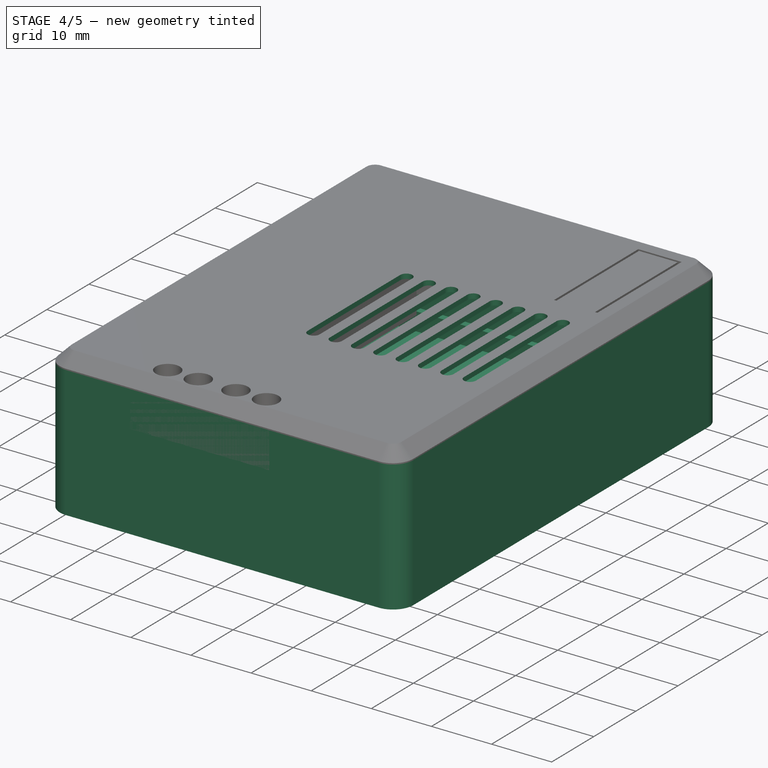
[diagram: stage 4 of 5 — iso view after this stage's code; geometry added in this stage tinted green]
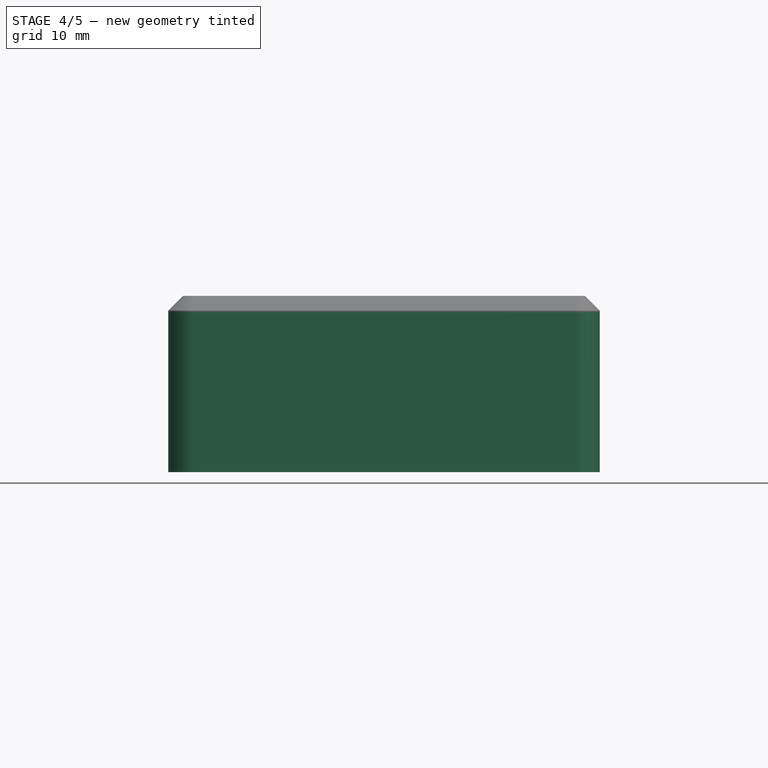
[diagram: stage 4 of 5 — front view after this stage's code; geometry added in this stage tinted green]
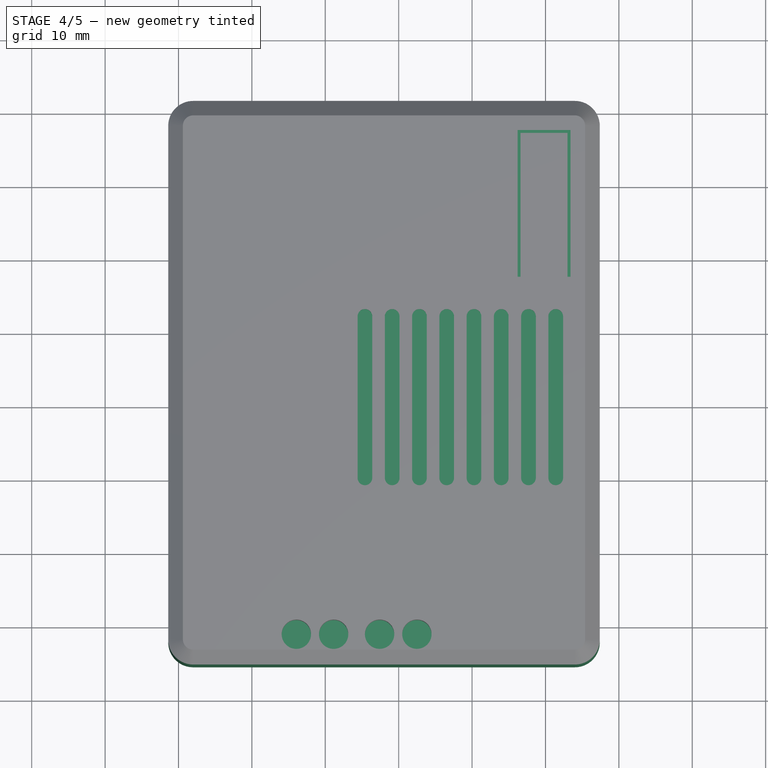
[diagram: stage 4 of 5 — top view after this stage's code; geometry added in this stage tinted green]
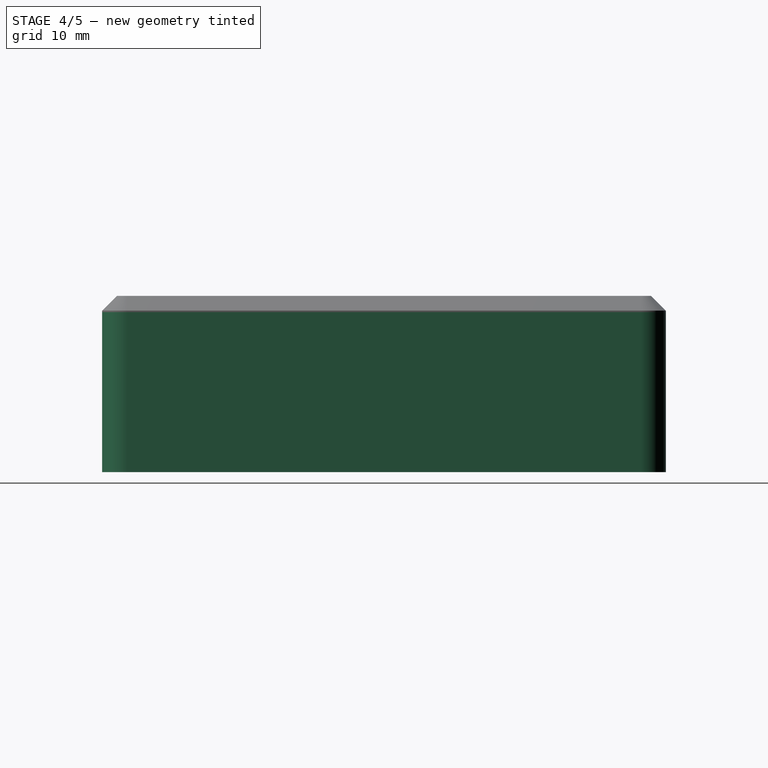
[diagram: stage 4 of 5 — right view after this stage's code; geometry added in this stage tinted green]
FEATURE [Part::Feature] Solid  label="SOLID"
  FixShape = 1
  InvalidShape = false
  TreeRank = 16
  ValidateShape = false
  shape: bbox 10.9 x 9.8 x 17.3 mm, 89 faces (baked)
FEATURE [App::Part] Part  label="TerminalBlock_Phoenix_MKDS-1,5-2-5.08_1x02_P5.08mm_Horizontal"
  ClaimAllChildren = false
  ExportMode = 1
  Group = -> [Solid]
  Origin = -> Origin
  Placement = pos=(47.4,-91.1,1.65) rot=(0,0,1;0rad)
  TreeRank = 18
  _ExportChildren = -> [Solid]
  _GroupVersion = 1
FEATURE [App::Link] Link001  label="TerminalBlock_Phoenix_MKDS-1,5-2-5.08_1x02_P5.08mm_Horizontal"
  AutoLinkLabel = true
  AutoPlacement = true
  LinkPlacement = pos=(36.055,-91.105,1.65) rot=(0,0,1;0rad)
  LinkedObject = -> Part
  Placement = pos=(36.055,-91.105,1.65) rot=(0,0,1;0rad)
  SyncGroupVisibility = false
  TreeRank = 26
  _LinkVersion = 1
FEATURE [Part::Feature] Solid007  label="GrblHAL_CNC3040 PCB"
  FixShape = 1
  InvalidShape = false
  TreeRank = 96
  ValidateShape = false
  shape: bbox 56 x 74 x 1.6 mm, 261 faces (baked)
FEATURE [Part::Feature] Solid003  label="SOLID"
  FixShape = 1
  InvalidShape = false
  TreeRank = 105
  ValidateShape = false
  shape: bbox 53.26 x 16.88 x 17.98 mm, 259 faces (baked)
FEATURE [App::Part] Part003  label="DSUB-25_Female_Horizontal_P2.77x2.84mm_EdgePinOffset4.94mm_Housed_MountingHolesOffset7.48mm"
  ClaimAllChildren = false
  ExportMode = 1
  Group = -> [Solid003]
  Origin = -> Origin003
  Placement = pos=(27.5803,-63.625,1.65) rot=(0,0,-1;1.5708rad)
  TreeRank = 29
  _ExportChildren = -> [Solid003]
  _GroupVersion = 1
FEATURE [App::Part] Part007  label="GrblHAL_CNC3040 1"
  ClaimAllChildren = false
  ExportMode = 1
  Group = -> [Part,Link001,Part003,Solid007]
  Origin = -> Origin007
  TreeRank = 98
  _ExportChildren = -> [Part,Link001,Part003,Solid007]
  _GroupVersion = 1
FEATURE [Part::SubShapeBinder] Import  label="Import(GrblHAL_CNC3040 PCB)"
  BindCopyOnChange = 0
  BindMode = 0
  ClaimChildren = false
  Context = -> Body [Import.]
  EdgeTolerance = 1e-06
  FillStyle = 0
  FixShape = 1
  Fuse = false
  InvalidShape = false
  MakeFace = false
  MergeEdges = true
  OffsetFill = false
  OffsetIntersection = false
  OffsetJoinType = 0
  OffsetOpenResult = false
  Outline = false
  PartialLoad = false
  Relative = true
  SplitEdges = false
  Support = -> [Part007[Solid007.]]
  TightBound = false
  TreeRank = 135
  ValidateShape = false
  _Version = 8
FEATURE [PartDesign::Plane] DatumPlane
  AttachmentOffset = pos=(0,0,3) rot=(0,0,1;0rad)
  AttachmentSupport = -> [Import]
  FixShape = 1
  InvalidShape = false
  Length = 76
  MapMode = 5
  MinimumLength = 10
  MinimumWidth = 10
  Placement = pos=(0,0,-3) rot=(1,0,0;3.14159rad)
  ResizeMode = 0
  Support = -> [Import]
  TreeRank = 134
  ValidateShape = false
  Width = 94
FEATURE [Sketcher::SketchObject] Sketch
  ArcFitTolerance = 1e-06
  AttachmentSupport = -> [DatumPlane]
  ExternalBSplineMaxDegree = 5
  ExternalBSplineTolerance = 0.0001
  ExternalGeometry = -> [Import]
  FixShape = 1
  FullyConstrained = true
  InternalTolerance = 1e-06
  InvalidShape = false
  MakeInternals = false
  MapMode = 5
  Placement = pos=(0,0,-3) rot=(1,0,0;3.14159rad)
  Support = -> [DatumPlane]
  TreeRank = 136
  ValidateShape = false
  sketch-geometry (8):
    g0: ArcOfCircle CenterX=74 CenterY=92 CenterZ=0 NormalX=0 NormalY=0 NormalZ=1 AngleXU=0 Radius=3.4 StartAngle=1.1e-15 EndAngle=1.5708
    g1: ArcOfCircle CenterX=22 CenterY=92 CenterZ=0 NormalX=0 NormalY=0 NormalZ=1 AngleXU=0 Radius=3.4 StartAngle=1.5708 EndAngle=3.14159
    g2: ArcOfCircle CenterX=74 CenterY=22 CenterZ=0 NormalX=0 NormalY=0 NormalZ=1 AngleXU=0 Radius=3.4 StartAngle=4.71239 EndAngle=6.28319
    g3: ArcOfCircle CenterX=22 CenterY=22 CenterZ=0 NormalX=0 NormalY=0 NormalZ=1 AngleXU=0 Radius=3.4 StartAngle=3.14159 EndAngle=4.71239
    g4: LineSegment StartX=22 StartY=18.6 StartZ=0 EndX=74 EndY=18.6 EndZ=0
    g5: LineSegment StartX=77.4 StartY=22 StartZ=0 EndX=77.4 EndY=92 EndZ=0
    g6: LineSegment StartX=74 StartY=95.4 StartZ=0 EndX=22 EndY=95.4 EndZ=0
    g7: LineSegment StartX=18.6 StartY=92 StartZ=0 EndX=18.6 EndY=22 EndZ=0
  constraints (28):
    c: Horizontal(g0,g-4)
    c: Horizontal(g-4,g0)
    c: Vertical(g0,g-3)
    c: Vertical(g-3,g0)
    c: Vertical(g1,g-3)
    c: Vertical(g-3,g1)
    c: Horizontal(g1,g-5)
    c: Horizontal(g-5,g1)
    c: Horizontal(g2,g-4)
    c: Horizontal(g-4,g2)
    c: Vertical(g2,g2)
    c: Vertical(g2,g-6)
    c: Vertical(g3,g-6)
    c: Vertical(g-6,g3)
    c: Horizontal(g3,g-5)
    c: Horizontal(g-5,g3)
    c: Coincident(g4,g3)
    c: Coincident(g4,g2)
    c: Horizontal(g4)
    c: Coincident(g5,g2)
    c: Coincident(g5,g0)
    c: Vertical(g5)
    c: Coincident(g6,g0)
    c: Coincident(g6,g1)
    c: Horizontal(g6)
    c: Coincident(g7,g1)
    c: Coincident(g7,g3)
    c: DistanceX(g-4,g0) = 1.4
FEATURE [PartDesign::Pad] Pad
  AddSubType = 0
  AlongSketchNormal = false
  AutoTaperInnerAngle = true
  CheckUpToFaceLimits = true
  ClaimChildren = false
  Direction = (0,-1e-16,-1)
  Fit = 0
  FitJoin = 0
  FixShape = 1
  InnerFit = 0
  InnerFitJoin = 0
  InvalidShape = false
  Length = 0.8
  Length2 = 100
  Linearize = true
  NewSolid = false
  Profile = -> Sketch
  Refine = true
  Suppress = false
  TaperInnerAngle = 0
  TaperInnerAngleRev = 0
  TreeRank = 137
  Type = 0
  ValidateShape = false
  _ProfileBasedVersion = 1
FEATURE [Sketcher::SketchObject] Sketch001
  ArcFitTolerance = 1e-06
  AttachmentSupport = -> [Pad]
  ExternalBSplineMaxDegree = 5
  ExternalBSplineTolerance = 0.0001
  ExternalGeometry = -> [Pad]
  FixShape = 1
  FullyConstrained = true
  InternalTolerance = 1e-06
  InvalidShape = false
  MakeInternals = false
  MapMode = 5
  Placement = pos=(0,-4e-16,-3) rot=(0,0,1;0rad)
  Support = -> [Pad]
  TreeRank = 138
  ValidateShape = false
  sketch-geometry (6):
    g0: GeomPoint [constr] X=48 Y=-57 Z=0
    g1: LineSegment StartX=20.9 StartY=-20.9 StartZ=0 EndX=20.9 EndY=-93.1 EndZ=0
    g2: LineSegment StartX=20.9 StartY=-93.1 StartZ=0 EndX=75.1 EndY=-93.1 EndZ=0
    g3: LineSegment StartX=75.1 StartY=-93.1 StartZ=0 EndX=75.1 EndY=-20.9 EndZ=0
    g4: LineSegment StartX=75.1 StartY=-20.9 StartZ=0 EndX=20.9 EndY=-20.9 EndZ=0
    g5: GeomPoint [constr] X=48 Y=-57 Z=0
  constraints (13):
    c: Symmetric(g-8,g-4,g0)
    c: Coincident(g1,g2)
    c: Coincident(g2,g3)
    c: Coincident(g3,g4)
    c: Coincident(g4,g1)
    c: Horizontal(g2)
    c: Horizontal(g4)
    c: Vertical(g1)
    c: Vertical(g3)
    c: Symmetric(g2,g1,g5)
    c: Coincident(g5,g0)
    c: DistanceX(g2,g-10) = 2.3
    c: DistanceY(g-10,g2) = 2.3
FEATURE [PartDesign::Pad] Pad001
  AddSubType = 0
  AlongSketchNormal = false
  AutoTaperInnerAngle = true
  BaseFeature = -> Pad
  CheckUpToFaceLimits = true
  ClaimChildren = false
  Direction = (0,1e-16,1)
  Fit = 0
  FitJoin = 0
  FixShape = 1
  InnerFit = 0
  InnerFitJoin = 0
  InvalidShape = false
  Length = 3
  Length2 = 100
  Linearize = true
  NewSolid = false
  Profile = -> Sketch001
  Refine = true
  Suppress = false
  TaperInnerAngle = 0
  TaperInnerAngleRev = 0
  TreeRank = 139
  Type = 0
  ValidateShape = false
  _ProfileBasedVersion = 1
FEATURE [Sketcher::SketchObject] Sketch002
  ArcFitTolerance = 1e-06
  AttachmentSupport = -> [Pad001]
  ExternalBSplineMaxDegree = 5
  ExternalBSplineTolerance = 0.0001
  ExternalGeometry = -> [Pad001]
  FixShape = 1
  FullyConstrained = true
  InternalTolerance = 1e-06
  InvalidShape = false
  MakeInternals = false
  MapMode = 5
  Placement = pos=(0,0,2.1e-15) rot=(0,0,1;0rad)
  Support = -> [Pad001]
  TreeRank = 140
  ValidateShape = false
  sketch-geometry (8):
    g0: ArcOfCircle CenterX=74 CenterY=-22 CenterZ=0 NormalX=0 NormalY=0 NormalZ=1 AngleXU=0 Radius=2.2 StartAngle=0 EndAngle=1.5708
    g1: ArcOfCircle CenterX=74 CenterY=-92 CenterZ=0 NormalX=0 NormalY=0 NormalZ=1 AngleXU=0 Radius=2.2 StartAngle=4.71239 EndAngle=6.28319
    g2: ArcOfCircle CenterX=22 CenterY=-92 CenterZ=0 NormalX=0 NormalY=0 NormalZ=1 AngleXU=0 Radius=2.2 StartAngle=3.14159 EndAngle=4.71239
    g3: ArcOfCircle CenterX=22 CenterY=-22 CenterZ=0 NormalX=0 NormalY=0 NormalZ=1 AngleXU=0 Radius=2.2 StartAngle=1.5708 EndAngle=3.14159
    g4: LineSegment StartX=76.2 StartY=-92 StartZ=0 EndX=76.2 EndY=-22 EndZ=0
    g5: LineSegment StartX=74 StartY=-19.8 StartZ=0 EndX=22 EndY=-19.8 EndZ=0
    g6: LineSegment StartX=19.8 StartY=-22 StartZ=0 EndX=19.8 EndY=-92 EndZ=0
    g7: LineSegment StartX=22 StartY=-94.2 StartZ=0 EndX=74 EndY=-94.2 EndZ=0
  constraints (24):
    c: Coincident(g0,g-3)
    c: Coincident(g1,g-10)
    c: Coincident(g2,g-8)
    c: Coincident(g3,g-6)
    c: Vertical(g-6,g3)
    c: Vertical(g-5,g0)
    c: Vertical(g-10,g1)
    c: Vertical(g-9,g2)
    c: Horizontal(g2,g-8)
    c: Horizontal(g3,g-7)
    c: Horizontal(g-4,g0)
    c: Horizontal(g-10,g1)
    c: Coincident(g4,g1)
    c: Coincident(g4,g0)
    c: Vertical(g4)
    c: Coincident(g5,g0)
    c: Coincident(g5,g3)
    c: Horizontal(g5)
    c: Coincident(g6,g3)
    c: Coincident(g6,g2)
    c: Vertical(g6)
    c: Coincident(g7,g2)
    c: Coincident(g7,g1)
    c: DistanceX(g1,g-10) = 1.2
FEATURE [PartDesign::Pad] Pad002
  AddSubType = 0
  AlongSketchNormal = false
  AutoTaperInnerAngle = true
  BaseFeature = -> Pad001
  CheckUpToFaceLimits = true
  ClaimChildren = false
  Direction = (0,1e-16,1)
  Fit = 0
  FitJoin = 0
  FixShape = 1
  InnerFit = 0
  InnerFitJoin = 0
  InvalidShape = false
  Length = 18
  Length2 = 100
  Linearize = true
  NewSolid = false
  Profile = -> Sketch002
  Refine = true
  Suppress = false
  TaperInnerAngle = 0
  TaperInnerAngleRev = 0
  TreeRank = 141
  Type = 0
  ValidateShape = false
  _ProfileBasedVersion = 1
FEATURE [Sketcher::SketchObject] Sketch019
  ArcFitTolerance = 1e-06
  AttachmentSupport = -> [Chamfer004]
  ExternalBSplineMaxDegree = 5
  ExternalBSplineTolerance = 0.0001
  ExternalGeometry = -> [Chamfer004]
  FixShape = 1
  FullyConstrained = true
  InternalTolerance = 1e-06
  InvalidShape = false
  MakeInternals = false
  MapMode = 5
  Placement = pos=(0,2e-15,20.2) rot=(0,0,1;0rad)
  Support = -> [Chamfer004]
  TreeRank = 197
  ValidateShape = false
  sketch-geometry (4):
    g0: ArcOfCircle CenterX=71.4 CenterY=-48 CenterZ=0 NormalX=0 NormalY=0 NormalZ=1 AngleXU=0 Radius=1 StartAngle=7.13e-14 EndAngle=3.14159
    g1: ArcOfCircle CenterX=71.4 CenterY=-70 CenterZ=0 NormalX=0 NormalY=0 NormalZ=1 AngleXU=0 Radius=1 StartAngle=3.14159 EndAngle=6.28319
    g2: LineSegment StartX=70.4 StartY=-48 StartZ=0 EndX=70.4 EndY=-70 EndZ=0
    g3: LineSegment StartX=72.4 StartY=-70 StartZ=0 EndX=72.4 EndY=-48 EndZ=0
  constraints (10):
    c: Tangent(g0,g2) = -1.5708
    c: Tangent(g2,g1) = -1.5708
    c: Tangent(g1,g3) = -1.5708
    c: Tangent(g3,g0) = -1.5708
    c: Equal(g0,g1)
    c: Vertical(g0,g1)
    c: Radius(g0) = 1
    c: Distance(g1,g-3) = 3
    c: DistanceY(g-3,g1) = 22
    c: Distance(g3) = 22
FEATURE [PartDesign::Pocket] Pocket009
  AddSubType = 1
  AutoTaperInnerAngle = true
  BaseFeature = -> Chamfer004
  CheckUpToFaceLimits = true
  ClaimChildren = false
  Fit = 0
  FitJoin = 0
  FixShape = 1
  InnerFit = 0
  InnerFitJoin = 0
  InvalidShape = false
  Length = 5
  Length2 = 100
  Linearize = true
  NewSolid = false
  Profile = -> Sketch019
  Refine = true
  Suppress = false
  TaperInnerAngle = 0
  TaperInnerAngleRev = 0
  TreeRank = 198
  Type = 0
  ValidateShape = false
  _ProfileBasedVersion = 1
  _Version = 1
FEATURE [PartDesign::LinearPattern] LinearPattern
  AddSubType = 0
  BaseFeature = -> Pocket009
  CopyShape = false
  Direction = -> Sketch019 [H_Axis]
  FixShape = 1
  InvalidShape = false
  Length = 26
  NewSolid = false
  Occurrences = 8
  OriginalSubs = -> [Pocket009]
  Originals = -> [Pocket009]
  ParallelTransform = true
  Refine = true
  Reversed = true
  SubTransform = true
  Suppress = false
  TreeRank = 199
  ValidateShape = false
  _Version = 3
FEATURE [PartDesign::Body] Body001  label="Top"
  AutoGroupSolids = false
  ClaimAllChildren = false
  ExportMode = 0
  FixShape = 1
  Group = -> [Import002,Sketch006,Pad003,Sketch007,Pad004,Sketch008,Pocket003,Sketch009,Pad005,Sketch010,Pad006,Sketch011,Pad007,Sketch012,Pad008,Sketch013,Pocket004,Chamfer002,Chamfer003,Sketch014,Import003,Import004,Pocket005,Sketch015,Pocket006,Sketch016,Pocket007,Fillet001,Sketch017,Pocket008,Sketch018,Pad009,Chamfer004,Sketch019,Pocket009,LinearPattern]
  InvalidShape = false
  Origin = -> Origin009
  Tip = -> LinearPattern
  TreeRank = 161
  ValidateShape = false
  _ExportChildren = -> [Import002,Pad003,Pad004,Pocket003,Pad005,Pad006,Pad007,Pad008,Pocket004,Chamfer002,Chamfer003,Import003,Import004,Pocket005,Pocket006,Pocket007,Fillet001,Pocket008,Pad009,Chamfer004,Pocket009,LinearPattern]
  _GroupVersion = 1
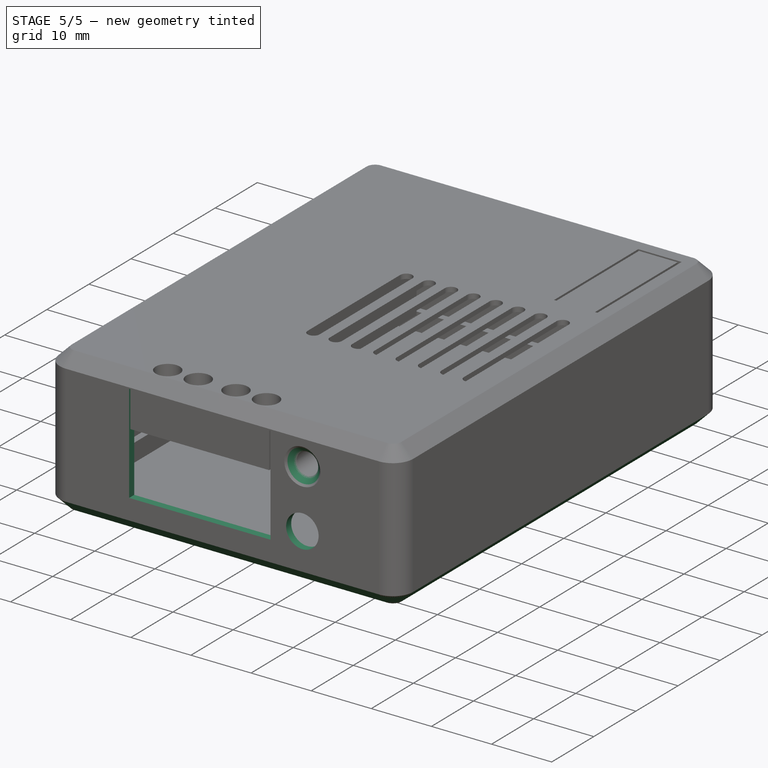
[diagram: stage 5 of 5 — iso view after this stage's code; geometry added in this stage tinted green]
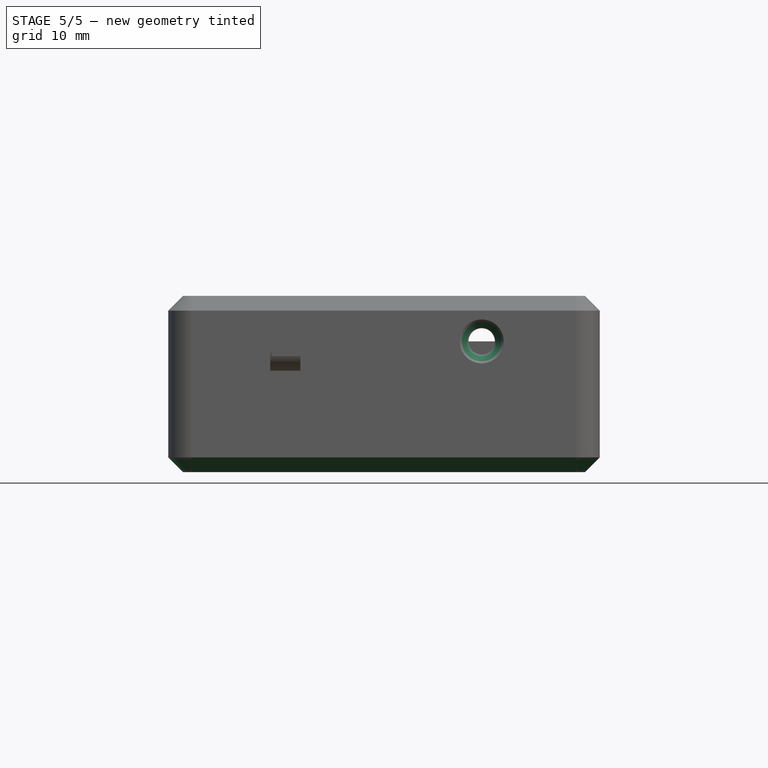
[diagram: stage 5 of 5 — front view after this stage's code; geometry added in this stage tinted green]
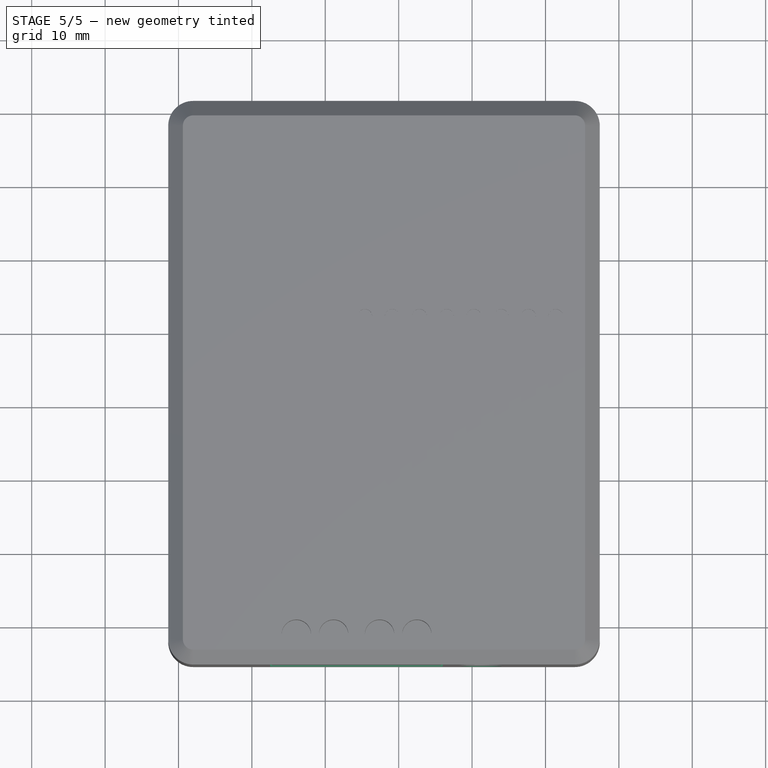
[diagram: stage 5 of 5 — top view after this stage's code; geometry added in this stage tinted green]
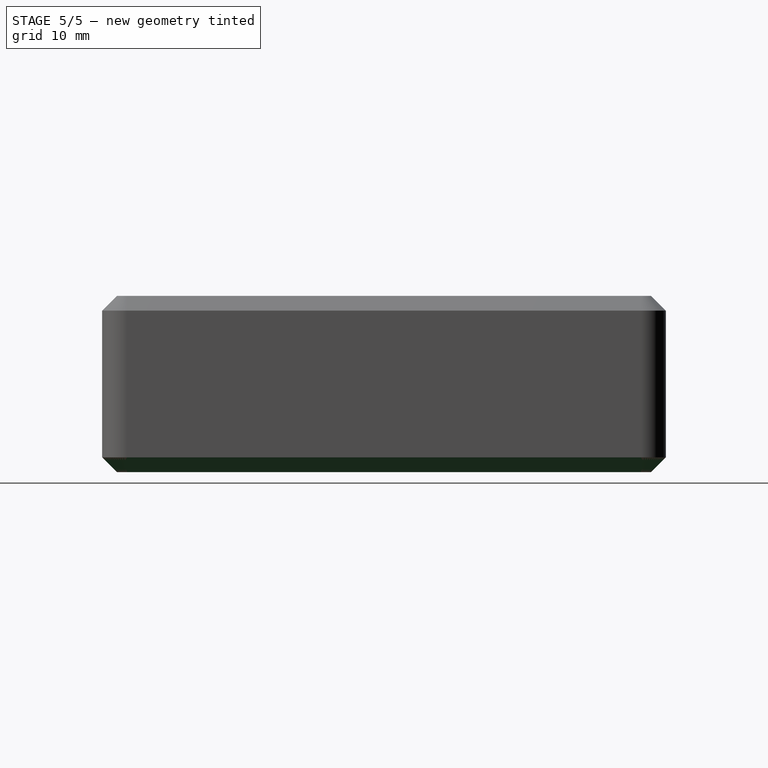
[diagram: stage 5 of 5 — right view after this stage's code; geometry added in this stage tinted green]
FEATURE [Sketcher::SketchObject] Sketch003
  ArcFitTolerance = 1e-06
  AttachmentSupport = -> [Pad002]
  ExternalBSplineMaxDegree = 5
  ExternalBSplineTolerance = 0.0001
  ExternalGeometry = -> [Import,Pad002]
  FixShape = 1
  FullyConstrained = false
  InternalTolerance = 1e-06
  InvalidShape = false
  MakeInternals = false
  MapMode = 5
  Placement = pos=(0,-95.4,0) rot=(1,0,0;1.5708rad)
  Support = -> [Pad002]
  TreeRank = 142
  ValidateShape = false
  sketch-geometry (7):
    g0: LineSegment StartX=32.5 StartY=21.6 StartZ=0 EndX=56 EndY=21.6 EndZ=0
    g1: LineSegment StartX=56 StartY=21.6 StartZ=0 EndX=56 EndY=1.6 EndZ=0
    g2: LineSegment StartX=56 StartY=1.6 StartZ=0 EndX=32.5 EndY=1.6 EndZ=0
    g3: LineSegment StartX=32.5 StartY=1.6 StartZ=0 EndX=32.5 EndY=21.6 EndZ=0
    g4: Circle CenterX=61.3116 CenterY=4.3 CenterZ=0 NormalX=0 NormalY=0 NormalZ=1 AngleXU=0 Radius=2.7
    g5: LineSegment [constr] StartX=61.3116 StartY=5.54672 StartZ=0 EndX=61.3116 EndY=-1.16389 EndZ=0
    g6: Circle CenterX=61.3116 CenterY=14 CenterZ=0 NormalX=0 NormalY=0 NormalZ=1 AngleXU=0 Radius=1.8
  constraints (19):
    c: Coincident(g0,g1)
    c: Coincident(g1,g2)
    c: Coincident(g2,g3)
    c: Coincident(g3,g0)
    c: Horizontal(g0)
    c: Horizontal(g2)
    c: Vertical(g1)
    c: Vertical(g3)
    c: DistanceY(g-1,g1) = 1.6
    c: DistanceX(g-2,g2) = 32.5
    c: Distance(g2) = 23.5
    c: Distance(g3) = 20
    c: Diameter(g4) = 5.4
    c: Symmetric(g-3,g-3,g5)
    c: PointOnObject(g4,g5)
    c: Tangent(g4,g2)
    c: PointOnObject(g6,g5)
    c: Diameter(g6) = 3.6
    c: Distance(g6,g-4) = 4
FEATURE [PartDesign::Pocket] Pocket
  AddSubType = 1
  AutoTaperInnerAngle = true
  BaseFeature = -> Pad002
  CheckUpToFaceLimits = true
  ClaimChildren = false
  Fit = 0
  FitJoin = 0
  FixShape = 1
  InnerFit = 0
  InnerFitJoin = 0
  InvalidShape = false
  Length = 5
  Length2 = 100
  Linearize = true
  NewSolid = false
  Profile = -> Sketch003
  Refine = true
  Suppress = false
  TaperInnerAngle = 0
  TaperInnerAngleRev = 0
  TreeRank = 143
  Type = 0
  ValidateShape = false
  _ProfileBasedVersion = 1
  _Version = 1
FEATURE [Part::SubShapeBinder] Import001  label="Import001(SOLID)"
  BindCopyOnChange = 0
  BindMode = 0
  ClaimChildren = false
  Context = -> Body [Import001.]
  EdgeTolerance = 1e-06
  FillStyle = 0
  FixShape = 1
  Fuse = false
  InvalidShape = false
  MakeFace = false
  MergeEdges = true
  OffsetFill = false
  OffsetIntersection = false
  OffsetJoinType = 0
  OffsetOpenResult = false
  Outline = false
  PartialLoad = false
  Relative = true
  SplitEdges = false
  Support = -> [Part007[Part003.Solid003.]]
  TightBound = false
  TreeRank = 145
  ValidateShape = false
  _Version = 8
FEATURE [Sketcher::SketchObject] Sketch004
  ArcFitTolerance = 1e-06
  AttachmentSupport = -> [Pocket]
  ExternalBSplineMaxDegree = 5
  ExternalBSplineTolerance = 0.0001
  ExternalGeometry = -> [Import001]
  FixShape = 1
  FullyConstrained = false
  InternalTolerance = 1e-06
  InvalidShape = false
  MakeInternals = false
  MapMode = 5
  Placement = pos=(18.6,-2.1e-15,0) rot=(-0.57735,0.57735,0.57735;4.18879rad)
  Support = -> [Pocket]
  TreeRank = 144
  ValidateShape = false
  sketch-geometry (5):
    g0: LineSegment StartX=20.005 StartY=21.6 StartZ=0 EndX=74.005 EndY=21.6 EndZ=0
    g1: LineSegment StartX=74.005 StartY=21.6 StartZ=0 EndX=74.005 EndY=1.6 EndZ=0
    g2: LineSegment StartX=74.005 StartY=1.6 StartZ=0 EndX=20.005 EndY=1.6 EndZ=0
    g3: LineSegment StartX=20.005 StartY=1.6 StartZ=0 EndX=20.005 EndY=21.6 EndZ=0
    g4: LineSegment [constr] StartX=47.005 StartY=18.7859 StartZ=0 EndX=47.005 EndY=-5.66756 EndZ=0
  constraints (13):
    c: Coincident(g0,g1)
    c: Coincident(g1,g2)
    c: Coincident(g2,g3)
    c: Coincident(g3,g0)
    c: Horizontal(g0)
    c: Horizontal(g2)
    c: Vertical(g1)
    c: Vertical(g3)
    c: DistanceY(g-1,g1) = 1.6
    c: Distance(g1) = 20
    c: Distance(g2) = 54
    c: PointOnObject(g-3,g4)
    c: Symmetric(g0,g0,g4)
FEATURE [PartDesign::Pocket] Pocket001
  AddSubType = 1
  AutoTaperInnerAngle = true
  BaseFeature = -> Pocket
  CheckUpToFaceLimits = true
  ClaimChildren = false
  Fit = 0
  FitJoin = 0
  FixShape = 1
  InnerFit = 0
  InnerFitJoin = 0
  InvalidShape = false
  Length = 5
  Length2 = 100
  Linearize = true
  NewSolid = false
  Profile = -> Sketch004
  Refine = true
  Suppress = false
  TaperInnerAngle = 0
  TaperInnerAngleRev = 0
  TreeRank = 146
  Type = 0
  ValidateShape = false
  _ProfileBasedVersion = 1
  _Version = 1
FEATURE [Sketcher::SketchObject] Sketch005
  ArcFitTolerance = 1e-06
  AttachmentSupport = -> [Pocket001]
  ExternalBSplineMaxDegree = 5
  ExternalBSplineTolerance = 0.0001
  ExternalGeometry = -> [Import,Pocket001]
  FixShape = 1
  FullyConstrained = false
  InternalTolerance = 1e-06
  InvalidShape = false
  MakeInternals = false
  MapMode = 5
  Placement = pos=(1e-16,-18.6,3e-15) rot=(0,0.707107,0.707107;3.14159rad)
  Support = -> [Pocket001]
  TreeRank = 147
  ValidateShape = false
  sketch-geometry (6):
    g0: LineSegment [constr] StartX=-61.2 StartY=23.4824 StartZ=0 EndX=-61.2 EndY=-12.3165 EndZ=0
    g1: LineSegment StartX=-66.2 StartY=18 StartZ=0 EndX=-56.2 EndY=18 EndZ=0
    g2: LineSegment StartX=-56.2 StartY=18 StartZ=0 EndX=-56.2 EndY=14 EndZ=0
    g3: LineSegment StartX=-56.2 StartY=14 StartZ=0 EndX=-66.2 EndY=14 EndZ=0
    g4: LineSegment StartX=-66.2 StartY=14 StartZ=0 EndX=-66.2 EndY=18 EndZ=0
    g5: Circle CenterX=-39 CenterY=14 CenterZ=0 NormalX=0 NormalY=0 NormalZ=1 AngleXU=0 Radius=1.8
  constraints (15):
    c: Symmetric(g-3,g-4,g0)
    c: Coincident(g1,g2)
    c: Coincident(g2,g3)
    c: Coincident(g3,g4)
    c: Coincident(g4,g1)
    c: Horizontal(g3)
    c: Vertical(g2)
    c: Vertical(g4)
    c: PointOnObject(g1,g-5)
    c: Symmetric(g1,g1,g0)
    c: Distance(g1) = 10
    c: Distance(g2) = 4
    c: Diameter(g5) = 3.6
    c: Distance(g5,g-5) = 4
    c: DistanceX(g5,g-5) = 17
FEATURE [PartDesign::Pocket] Pocket002
  AddSubType = 1
  AutoTaperInnerAngle = true
  BaseFeature = -> Pocket001
  CheckUpToFaceLimits = true
  ClaimChildren = false
  Fit = 0
  FitJoin = 0
  FixShape = 1
  InnerFit = 0
  InnerFitJoin = 0
  InvalidShape = false
  Length = 5
  Length2 = 100
  Linearize = true
  NewSolid = false
  Profile = -> Sketch005
  Refine = true
  Suppress = false
  TaperInnerAngle = 0
  TaperInnerAngleRev = 0
  TreeRank = 148
  Type = 0
  ValidateShape = false
  _ProfileBasedVersion = 1
  _Version = 1
FEATURE [PartDesign::Fillet] Fillet
  AddSubType = 0
  Base = -> Pocket002 [Edge86,Edge84]
  BaseFeature = -> Pocket002
  FixShape = 1
  InvalidShape = false
  NewSolid = false
  Radius = 1
  Refine = true
  SupportTransform = false
  Suppress = false
  TreeRank = 149
  ValidateShape = false
FEATURE [PartDesign::Chamfer] Chamfer
  AddSubType = 0
  Angle = 45
  Base = -> Fillet [Edge55]
  BaseFeature = -> Fillet
  ChamferType = 0
  FixShape = 1
  FlipDirection = false
  InvalidShape = false
  NewSolid = false
  Refine = true
  Size = 2
  Size2 = 1
  SupportTransform = false
  Suppress = false
  TreeRank = 150
  ValidateShape = false
FEATURE [PartDesign::Chamfer] Chamfer001
  AddSubType = 0
  Angle = 45
  Base = -> Chamfer [Edge67,Edge11]
  BaseFeature = -> Chamfer
  ChamferType = 0
  FixShape = 1
  FlipDirection = false
  InvalidShape = false
  NewSolid = false
  Refine = true
  Size = 1.19
  Size2 = 1
  SupportTransform = false
  Suppress = false
  TreeRank = 151
  ValidateShape = false
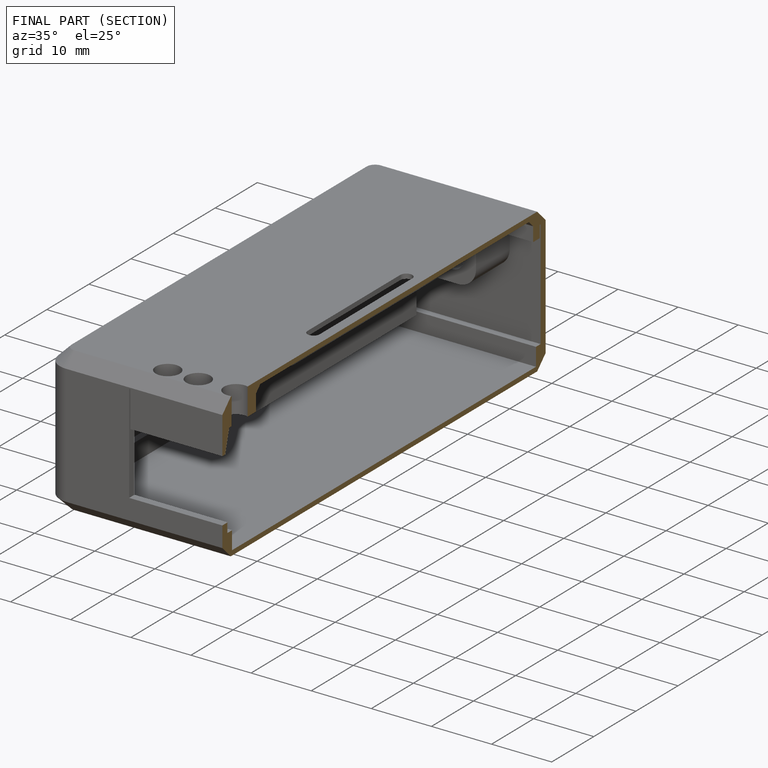
[diagram: finished part — half-section view (interior)]
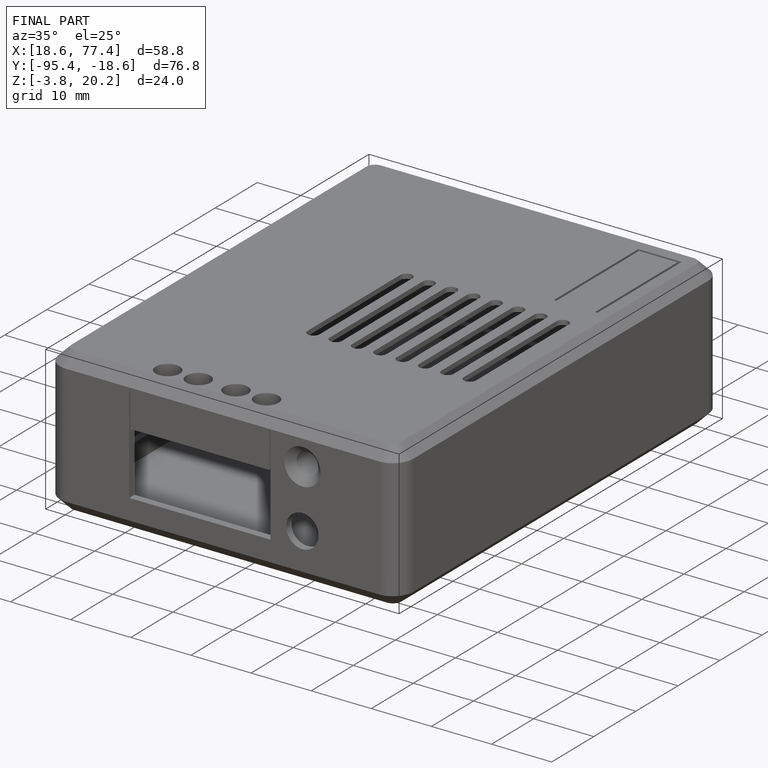
[diagram: finished part — iso view with bounding-box wireframe]
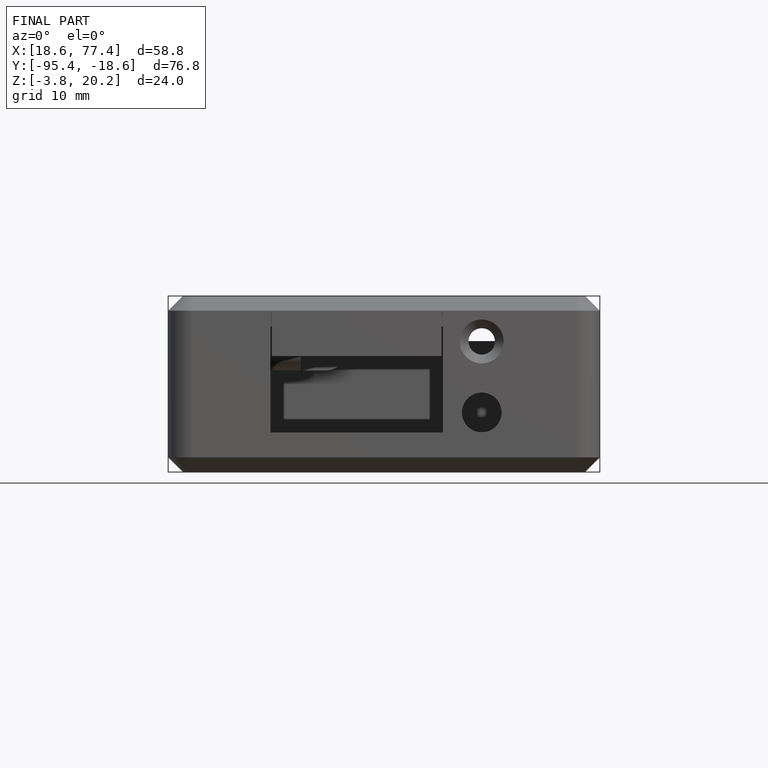
[diagram: finished part — front view with bounding-box wireframe]
